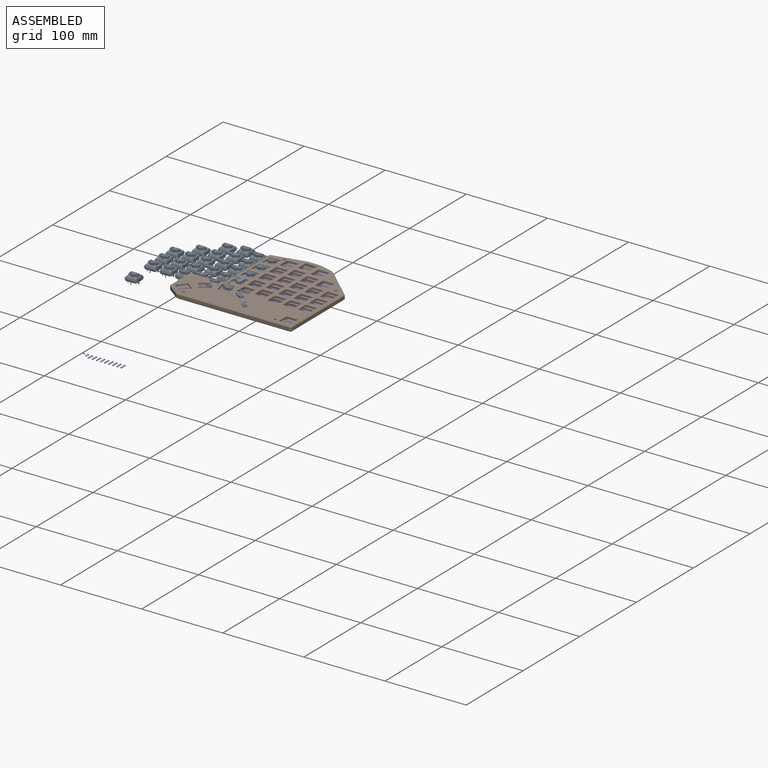
[diagram: assembled view]
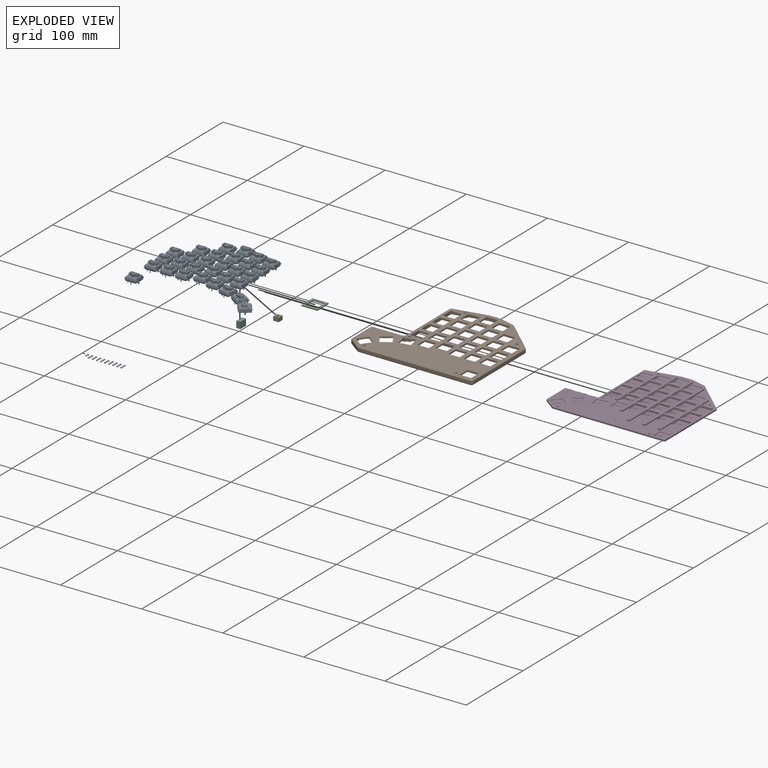
[diagram: exploded view]
GUIDED TOUR — FREECAD ASSEMBLY "grapto-v3"

This assembly has 6 components, labeled P0..P5 below (a component is one placed body or linked part; the same part can appear more than once), held together by 0 modeled joints plus 15 derived contact edges. A joint is a constraint between two components; its type names the relative motion it leaves free:
  CONTACT — a derived adjacency edge — the two components touch in the source model (clearance under 2% of the assembly's diagonal); it is measured from the geometry, not a modeled constraint.
Axis/direction vectors are unit vectors and 'through' points are millimeter coordinates, both in the assembly's world frame.

MATES
  1. CONTACT "contact_0_1": P0 <-> P1, contact direction (1.000, 0.000, 0.000) through (-4.25, -13.15, 1.79) mm (derived from contact, not a modeled constraint)
  2. CONTACT "contact_0_2": P0 <-> P2, contact direction (1.000, 0.000, 0.000) through (-0.58, 0.55, 0.03) mm (derived from contact, not a modeled constraint)
  3. CONTACT "contact_0_3": P0 <-> P3, contact direction (1.000, 0.000, 0.000) through (-7.07, 17.11, 0.85) mm (derived from contact, not a modeled constraint)
  4. CONTACT "contact_0_4": P0 <-> P4, contact direction (0.875, -0.485, -0.005) through (-0.88, -2.07, 4.93) mm (derived from contact, not a modeled constraint)
  5. CONTACT "contact_0_5": P0 <-> P5, contact direction (0.875, -0.485, -0.005) through (0.11, -2.00, 7.67) mm (derived from contact, not a modeled constraint)
  6. CONTACT "contact_1_2": P1 <-> P2, contact direction (0.000, 0.000, -1.000) through (12.95, 14.95, 2.55) mm (derived from contact, not a modeled constraint)
  7. CONTACT "contact_1_3": P1 <-> P3, contact direction (0.000, 0.000, -1.000) through (-33.68, -13.10, 1.80) mm (derived from contact, not a modeled constraint)
  8. CONTACT "contact_1_4": P1 <-> P4, contact direction (0.000, 0.000, 1.000) through (-3.96, -5.75, 4.40) mm (derived from contact, not a modeled constraint)
  9. CONTACT "contact_1_5": P1 <-> P5, contact direction (0.000, 0.000, 1.000) through (5.95, -5.95, 7.00) mm (derived from contact, not a modeled constraint)
  10. CONTACT "contact_2_3": P2 <-> P3, contact direction (0.000, 0.000, 1.000) through (0.55, 12.95, 1.22) mm (derived from contact, not a modeled constraint)
  11. CONTACT "contact_2_4": P2 <-> P4, contact direction (-0.485, -0.875, 0.004) through (-3.21, -3.21, 0.00) mm (derived from contact, not a modeled constraint)
  12. CONTACT "contact_2_5": P2 <-> P5, contact direction (-0.485, -0.875, 0.004) through (0.68, 0.00, 0.00) mm (derived from contact, not a modeled constraint)
  13. CONTACT "contact_3_4": P3 <-> P4, contact direction (0.000, 0.000, 1.000) through (-4.84, 4.31, 0.90) mm (derived from contact, not a modeled constraint)
  14. CONTACT "contact_3_5": P3 <-> P5, contact direction (-1.000, 0.000, 0.000) through (0.55, -5.95, 0.40) mm (derived from contact, not a modeled constraint)
  15. CONTACT "contact_4_5": P4 <-> P5, contact direction (1.000, 0.000, 0.000) through (0.24, 1.63, 0.50) mm (derived from contact, not a modeled constraint)

ASSEMBLY ORDER
  1. P0 — the base component [order verified]
  2. P4 [order verified]
  3. P5 [order verified]
  4. P2 [order verified]
  5. P1 [order verified]
  6. P3 [order verified]
(P1, P2, P3 verified with a relaxed clearance tolerance: the source model stores slight part interference there.)
Order-tag legend:
  [order verified] — this step's position reverses a verified removal order: the component was checked to insert without passing through the ones already placed.

Of the 6 components, 5 carry a construction recipe — the FreeCAD feature program (sketches with constraints, then the solid features that consume them) that regenerates the part from scratch, quoted from this document or from the linked companion document it references; the rest are supplied as boundary geometry only. The tour below walks the components in assembly order: each is shown spotlighted twice — in the assembled view, then in the exploded view, where a leader line traces a displaced component back to its assembled socket (components that stay in place when exploded have no leader line; saturated green if recipe-attached, orange if geometry-only; every other component desaturated gray) — followed by its recipe or geometry summary and the mates that hold it.
NOTE — this tour is split across 2 documents so each fits a 32k-token context. This is document 1: the component sections continue in the remaining 1 document, each repeating the header above.
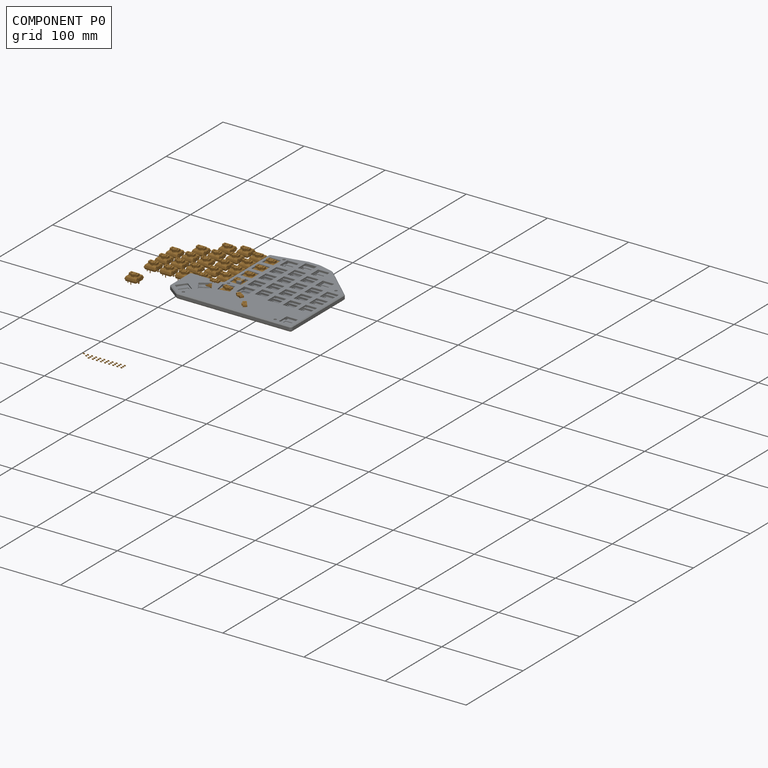
[diagram: component P0 — assembled]
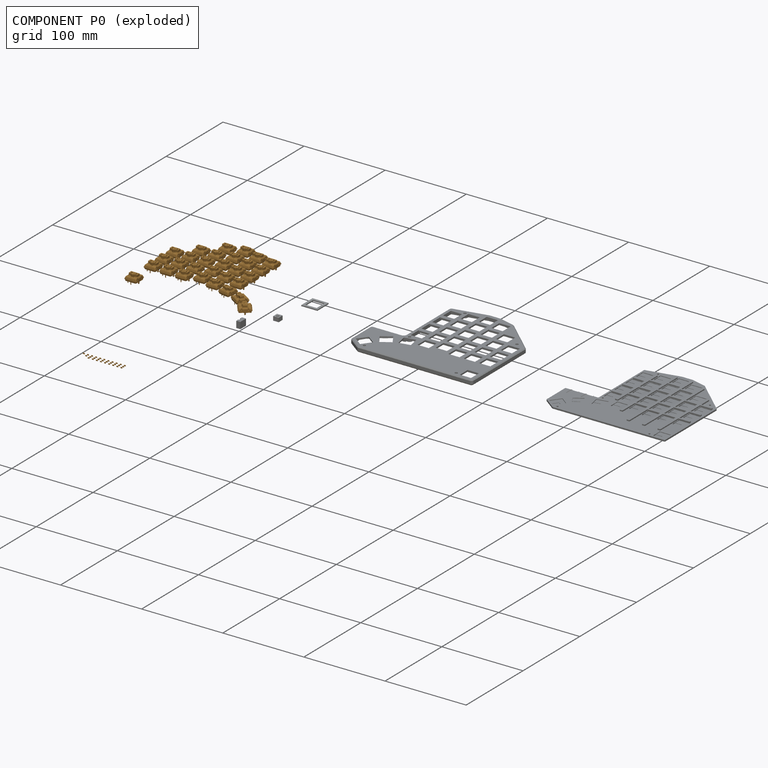
[diagram: component P0 — exploded]
COMPONENT P0 — geometry summary ("grapto-v3-pcb-left"; no construction recipe available for this part):
  bounding box: 302.6 x 150.2 x 11.0 mm
  tessellated surface: 883,920 triangles
  volume: 56619 mm^3 (11% of its bounding box)
  symmetry: mirror-symmetric across its z mid-plane
Held by: resting contact with P1 (derived edge); resting contact with P2 (derived edge); resting contact with P3 (derived edge); resting contact with P4 (derived edge); resting contact with P5 (derived edge).
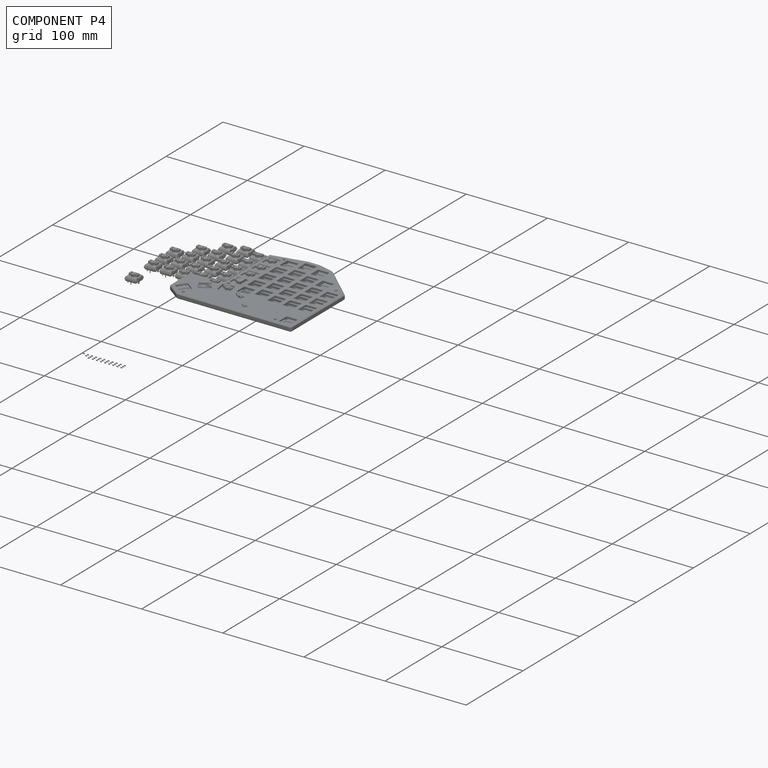
[diagram: component P4 — assembled]
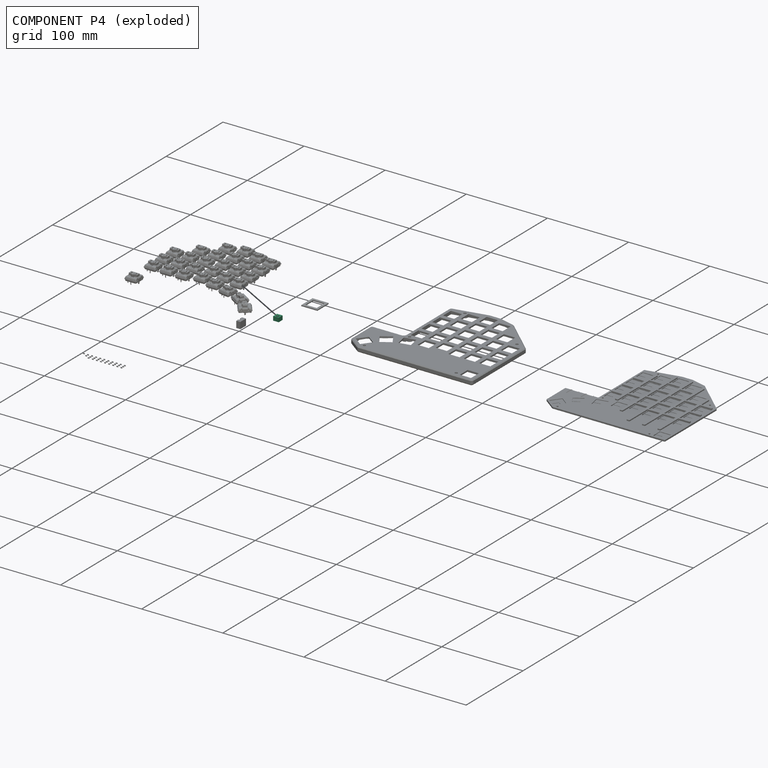
[diagram: component P4 — exploded]
COMPONENT P4 — recipe-attached ("InsetTest", modeled in this document).
Held by: resting contact with P0 (derived edge); resting contact with P1 (derived edge); resting contact with P2 (derived edge); resting contact with P3 (derived edge); resting contact with P5 (derived edge).
Construction recipe (the document's own serialized feature program — sketch geometry with constraints, then the solid features built on it; lengths are millimeters unless a unit is written):

FEATURE [Sketcher::SketchObject] Sketch035
  FullyConstrained = true
  MapMode = 5
  Support = -> [XY_Plane013]
  sketch-geometry (4):
    g0: LineSegment StartX=-3.425 StartY=3.425 StartZ=0 EndX=3.425 EndY=3.425 EndZ=0
    g1: LineSegment StartX=3.425 StartY=3.425 StartZ=0 EndX=3.425 EndY=-3.425 EndZ=0
    g2: LineSegment StartX=3.425 StartY=-3.425 StartZ=0 EndX=-3.425 EndY=-3.425 EndZ=0
    g3: LineSegment StartX=-3.425 StartY=-3.425 StartZ=0 EndX=-3.425 EndY=3.425 EndZ=0
  constraints (11):
    c: Coincident(g0,g1)
    c: Coincident(g1,g2)
    c: Coincident(g2,g3)
    c: Coincident(g3,g0)
    c: Horizontal(g0)
    c: Horizontal(g2)
    c: Vertical(g1)
    c: Vertical(g3)
    c: Symmetric(g2,g0,g-1)
    c: Equal(g0,g1)
    c: DistanceY(g1,g1) = 6.85
FEATURE [PartDesign::Pad] Pad003
  Direction = (1,1,1)
  Length = 5
  Length2 = 100
  Profile = -> Sketch035
  Type = 0
FEATURE [Sketcher::SketchObject] Sketch036
  FullyConstrained = true
  MapMode = 5
  Placement = pos=(0,0,5) rot=(0,0,1;0rad)
  Support = -> [Pad003]
  sketch-geometry (1):
    g0: Circle CenterX=0 CenterY=0 CenterZ=0 NormalX=0 NormalY=0 NormalZ=1 AngleXU=0 Radius=1.65
  constraints (2):
    c: Coincident(g0,g-1)
    c: Diameter(g0) = 3.3
FEATURE [PartDesign::Hole] Hole002
  BaseFeature = -> Pad003
  Depth = 4
  DepthType = 0
  Diameter = 3.3
  DrillForDepth = false
  DrillPoint = 0
  DrillPointAngle = 118
  HoleCutCountersinkAngle = 90
  HoleCutCustomValues = false
  HoleCutDepth = 0
  HoleCutDiameter = 4
  HoleCutType = 2
  ModelActualThread = false
  Profile = -> Sketch036
  Tapered = false
  TaperedAngle = 90
  ThreadAngle = 0
  ThreadClass = 0
  ThreadCutOffInner = 0
  ThreadCutOffOuter = 0
  ThreadDirection = 0
  ThreadFit = 0
  ThreadPitch = 0
  ThreadSize = 0
  ThreadType = 0
  Threaded = false
FEATURE [PartDesign::Body] Body005  label="InsetTest"
  Group = -> [Sketch035,Pad003,Sketch036,Hole002]
  Origin = -> Origin013
  Tip = -> Hole002
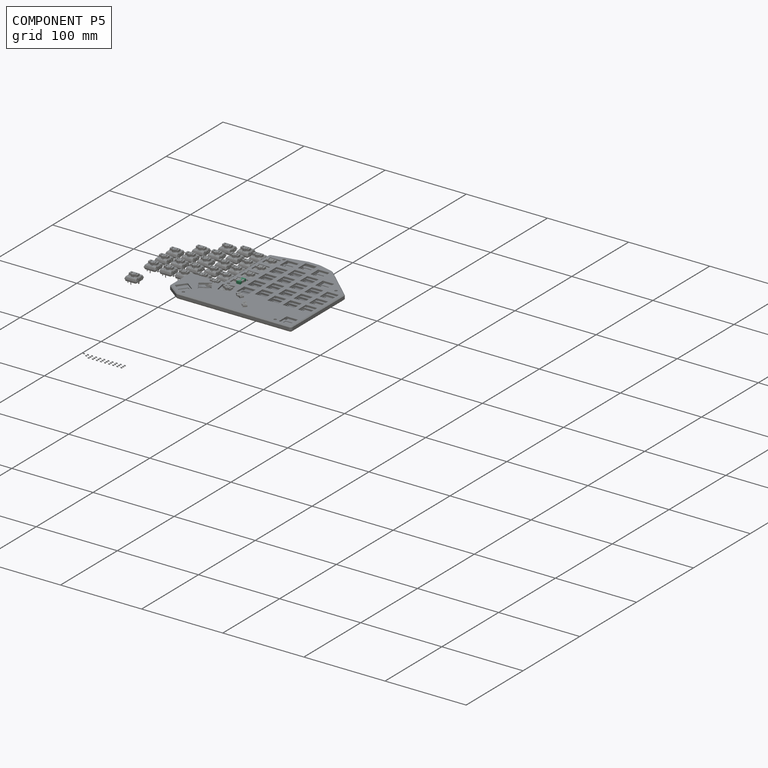
[diagram: component P5 — assembled]
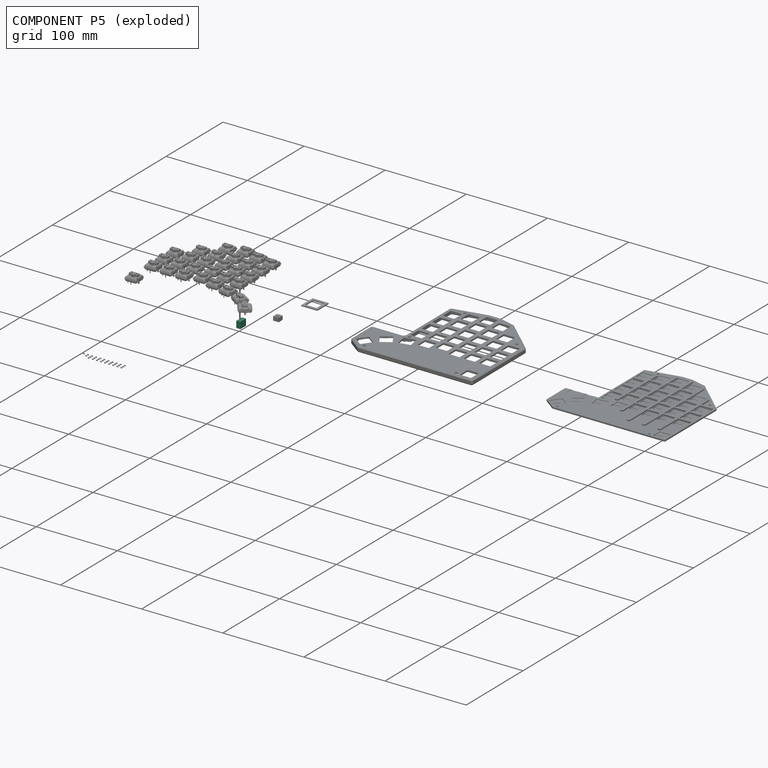
[diagram: component P5 — exploded]
COMPONENT P5 — recipe-attached ("InsetHolder", modeled in this document).
Held by: resting contact with P0 (derived edge); resting contact with P1 (derived edge); resting contact with P2 (derived edge); resting contact with P3 (derived edge); resting contact with P4 (derived edge).
Construction recipe (the document's own serialized feature program — sketch geometry with constraints, then the solid features built on it; lengths are millimeters unless a unit is written):

FEATURE [Sketcher::SketchObject] Sketch037
  FullyConstrained = true
  MapMode = 5
  Support = -> [XY_Plane015]
  sketch-geometry (6):
    g0: ArcOfCircle CenterX=-0.4 CenterY=0 CenterZ=0 NormalX=0 NormalY=0 NormalZ=1 AngleXU=0 Radius=1.75 StartAngle=4.943 EndAngle=7.62337
    g1: LineSegment StartX=-4e-16 StartY=1.70367 StartZ=0 EndX=0 EndY=5 EndZ=0
    g2: LineSegment StartX=0 StartY=5 StartZ=0 EndX=5 EndY=5 EndZ=0
    g3: LineSegment StartX=5 StartY=5 StartZ=0 EndX=5 EndY=-5 EndZ=0
    g4: LineSegment StartX=5 StartY=-5 StartZ=0 EndX=0 EndY=-5 EndZ=0
    g5: LineSegment StartX=0 StartY=-5 StartZ=0 EndX=3e-16 EndY=-1.70367 EndZ=0
  constraints (18):
    c: PointOnObject(g0,g-1)
    c: PointOnObject(g0,g-2)
    c: PointOnObject(g0,g-2)
    c: Coincident(g0,g1)
    c: PointOnObject(g1,g-2)
    c: Coincident(g1,g2)
    c: Horizontal(g2)
    c: Coincident(g2,g3)
    c: Vertical(g3)
    c: Coincident(g3,g4)
    c: Horizontal(g4)
    c: Coincident(g4,g5)
    c: Coincident(g5,g0)
    c: Symmetric(g1,g4,g-1)
    c: Diameter(g0) = 3.5
    c: Distance(g-1,g0) = 0.4
    c: Distance(g3) = 10
    c: Distance(g2) = 5
FEATURE [PartDesign::Pad] Pad004
  Direction = (1,1,1)
  Length = 8
  Length2 = 100
  Profile = -> Sketch037
  Type = 0
FEATURE [PartDesign::Body] Body007  label="InsetHolder"
  Group = -> [Sketch037,Pad004]
  Origin = -> Origin015
  Tip = -> Pad004
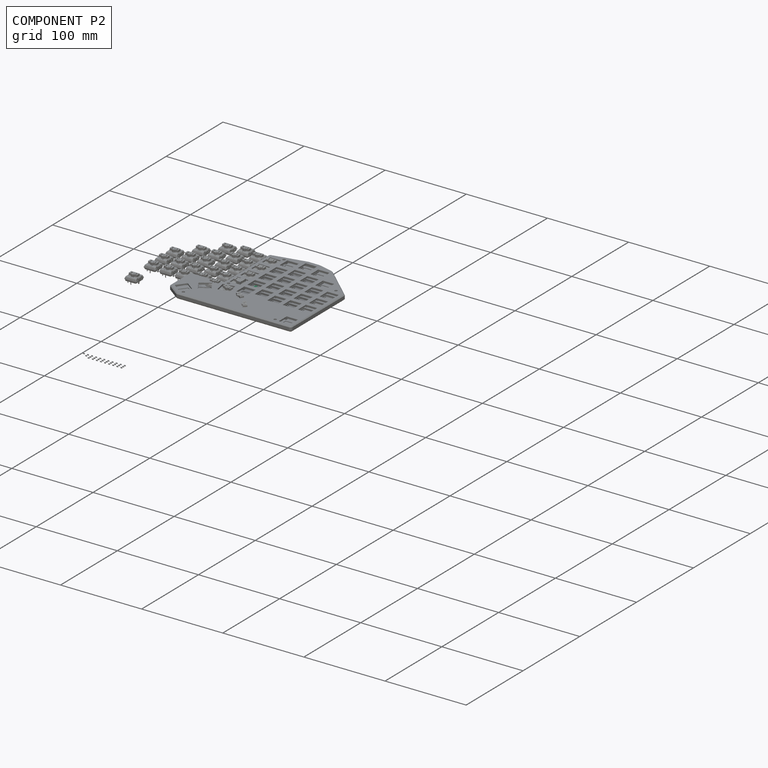
[diagram: component P2 — assembled]
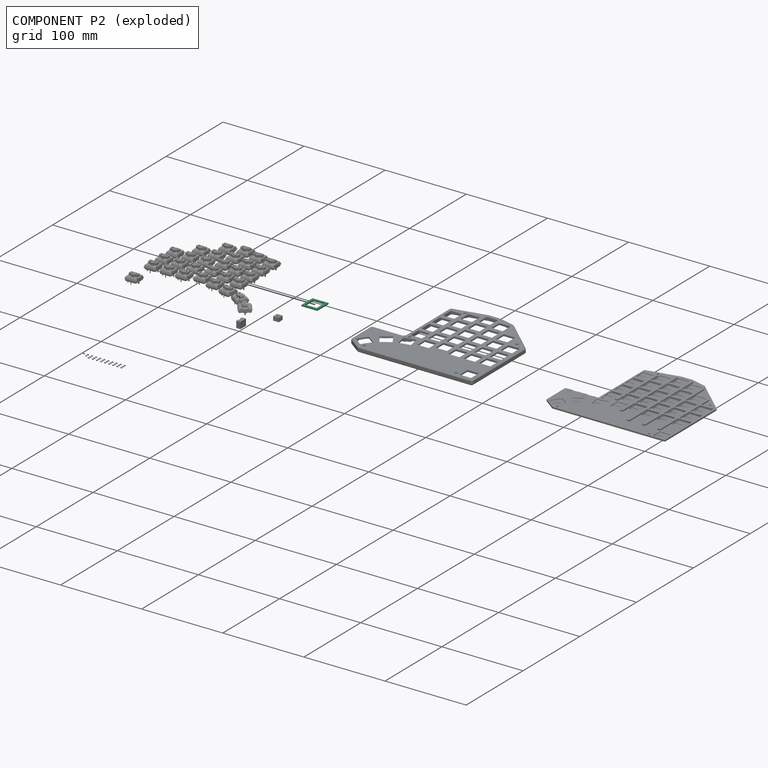
[diagram: component P2 — exploded]
COMPONENT P2 — recipe-attached ("switch test", modeled in this document).
Held by: resting contact with P0 (derived edge); resting contact with P1 (derived edge); resting contact with P3 (derived edge); resting contact with P4 (derived edge); resting contact with P5 (derived edge).
Construction recipe (the document's own serialized feature program — sketch geometry with constraints, then the solid features built on it; lengths are millimeters unless a unit is written):

FEATURE [Sketcher::SketchObject] Sketch001
  FullyConstrained = true
  MapMode = 5
  Support = -> [XY_Plane001]
  expr: Constraints[18] = <<ss>>.ss_sw_side
  sketch-geometry (8):
    g0: LineSegment StartX=-3 StartY=16.8 StartZ=0 EndX=16.8 EndY=16.8 EndZ=0
    g1: LineSegment StartX=16.8 StartY=16.8 StartZ=0 EndX=16.8 EndY=-3 EndZ=0
    g2: LineSegment StartX=16.8 StartY=-3 StartZ=0 EndX=-3 EndY=-3 EndZ=0
    g3: LineSegment StartX=-3 StartY=-3 StartZ=0 EndX=-3 EndY=16.8 EndZ=0
    g4: LineSegment StartX=0 StartY=13.8 StartZ=0 EndX=13.8 EndY=13.8 EndZ=0
    g5: LineSegment StartX=13.8 StartY=13.8 StartZ=0 EndX=13.8 EndY=0 EndZ=0
    g6: LineSegment StartX=13.8 StartY=0 StartZ=0 EndX=0 EndY=0 EndZ=0
    g7: LineSegment StartX=0 StartY=0 StartZ=0 EndX=0 EndY=13.8 EndZ=0
  constraints (23):
    c: Coincident(g0,g1)
    c: Coincident(g1,g2)
    c: Coincident(g2,g3)
    c: Coincident(g3,g0)
    c: Horizontal(g0)
    c: Horizontal(g2)
    c: Vertical(g1)
    c: Vertical(g3)
    c: Coincident(g4,g5)
    c: Coincident(g5,g6)
    c: Coincident(g6,g7)
    c: Coincident(g7,g4)
    c: Horizontal(g4)
    c: Horizontal(g6)
    c: Vertical(g5)
    c: Vertical(g7)
    c: Equal(g4,g5)
    c: Equal(g0,g1)
    c: Distance(g4) = 13.8
    c: Coincident(g-1,g6)
    c: DistanceX(g2,g6) = 3
    c: DistanceY(g2,g6) = 3
    c: DistanceY(g4,g0) = 3
FEATURE [PartDesign::Pad] Pad001
  Direction = (1,1,1)
  Length = 1.3
  Length2 = 100
  Profile = -> Sketch001
  Type = 0
FEATURE [PartDesign::Body] Body001  label="switch test"
  Group = -> [Sketch001,Pad001]
  Origin = -> Origin001
  Tip = -> Pad001
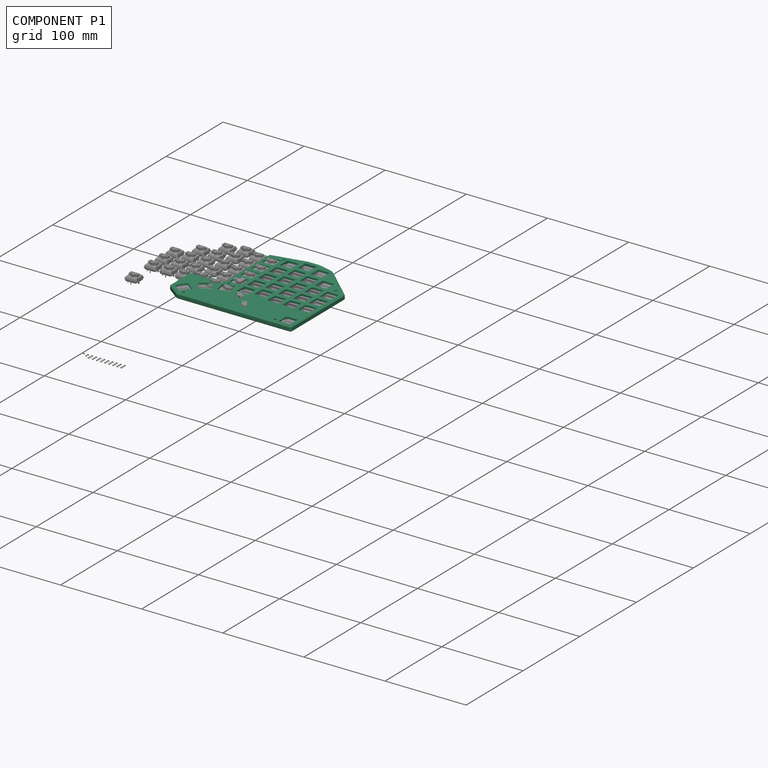
[diagram: component P1 — assembled]
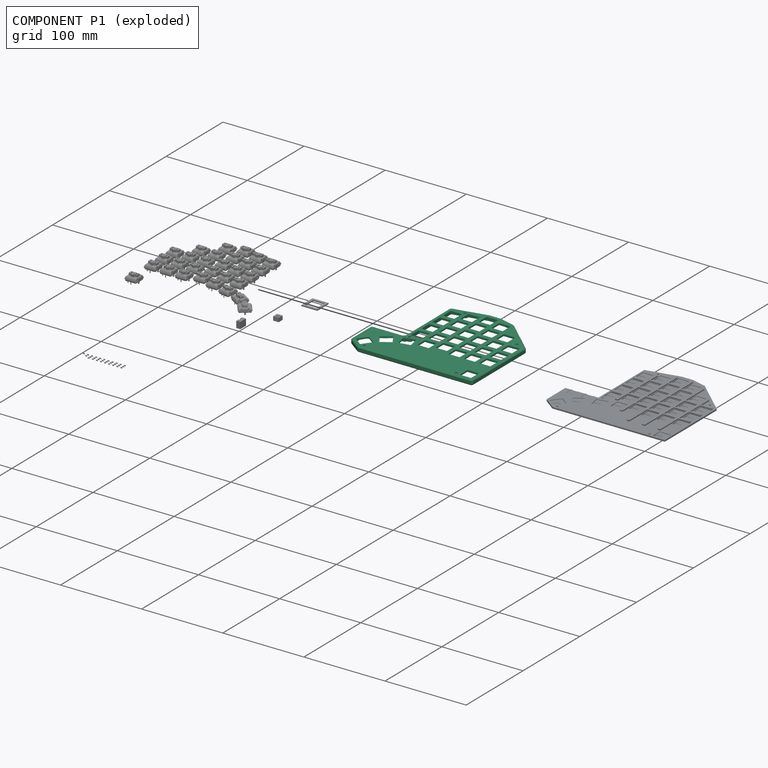
[diagram: component P1 — exploded]
COMPONENT P1 — recipe-attached ("BodyRight", modeled in this document).
Held by: resting contact with P0 (derived edge); resting contact with P2 (derived edge); resting contact with P3 (derived edge); resting contact with P4 (derived edge); resting contact with P5 (derived edge).
Construction recipe (the document's own serialized feature program — sketch geometry with constraints, then the solid features built on it; lengths are millimeters unless a unit is written):

FEATURE [Sketcher::SketchObject] Sketch  label="SketchTop"
  FullyConstrained = true
  MapMode = 5
  Support = -> [XY_Plane]
  expr: Constraints[247] = <<ss>>.ss_sw_side
  expr: Constraints[479] = <<ss>>.ss_sw_side
  expr: Constraints[480] = <<ss>>.ss_sw_side
  sketch-geometry (190):
    g0: LineSegment StartX=-6.9 StartY=-6.9 StartZ=0 EndX=6.9 EndY=-6.9 EndZ=0
    g1: LineSegment StartX=-6.9 StartY=-6.9 StartZ=0 EndX=-6.9 EndY=6.9 EndZ=0
    g2: LineSegment StartX=-6.9 StartY=6.9 StartZ=0 EndX=6.9 EndY=6.9 EndZ=0
    g3: LineSegment StartX=6.9 StartY=-6.9 StartZ=0 EndX=6.9 EndY=6.9 EndZ=0
    g4: LineSegment StartX=-6.9 StartY=12.1 StartZ=0 EndX=6.9 EndY=12.1 EndZ=0
    g5: LineSegment StartX=-6.9 StartY=12.1 StartZ=0 EndX=-6.9 EndY=25.9 EndZ=0
    g6: LineSegment StartX=-6.9 StartY=25.9 StartZ=0 EndX=6.9 EndY=25.9 EndZ=0
    g7: LineSegment StartX=6.9 StartY=12.1 StartZ=0 EndX=6.9 EndY=25.9 EndZ=0
    g8: LineSegment StartX=-6.9 StartY=31.1 StartZ=0 EndX=6.9 EndY=31.1 EndZ=0
    g9: LineSegment StartX=-6.9 StartY=31.1 StartZ=0 EndX=-6.9 EndY=44.9 EndZ=0
    g10: LineSegment StartX=-6.9 StartY=44.9 StartZ=0 EndX=6.9 EndY=44.9 EndZ=0
    g11: LineSegment StartX=6.9 StartY=31.1 StartZ=0 EndX=6.9 EndY=44.9 EndZ=0
    g12: LineSegment StartX=-6.9 StartY=50.1 StartZ=0 EndX=6.9 EndY=50.1 EndZ=0
    g13: LineSegment StartX=-6.9 StartY=50.1 StartZ=0 EndX=-6.9 EndY=63.9 EndZ=0
    g14: LineSegment StartX=-6.9 StartY=63.9 StartZ=0 EndX=6.9 EndY=63.9 EndZ=0
    g15: LineSegment StartX=6.9 StartY=50.1 StartZ=0 EndX=6.9 EndY=63.9 EndZ=0
    g16: LineSegment StartX=12.1 StartY=-21.9 StartZ=0 EndX=25.9 EndY=-21.9 EndZ=0
    g17: LineSegment StartX=12.1 StartY=-21.9 StartZ=0 EndX=12.1 EndY=-8.1 EndZ=0
    g18: LineSegment StartX=12.1 StartY=-8.1 StartZ=0 EndX=25.9 EndY=-8.1 EndZ=0
    g19: LineSegment StartX=25.9 StartY=-21.9 StartZ=0 EndX=25.9 EndY=-8.1 EndZ=0
    g20: LineSegment StartX=12.1 StartY=-2.9 StartZ=0 EndX=25.9 EndY=-2.9 EndZ=0
    g21: LineSegment StartX=12.1 StartY=-2.9 StartZ=0 EndX=12.1 EndY=10.9 EndZ=0
    g22: LineSegment StartX=12.1 StartY=10.9 StartZ=0 EndX=25.9 EndY=10.9 EndZ=0
    g23: LineSegment StartX=25.9 StartY=-2.9 StartZ=0 EndX=25.9 EndY=10.9 EndZ=0
    g24: LineSegment StartX=12.1 StartY=16.1 StartZ=0 EndX=25.9 EndY=16.1 EndZ=0
    g25: LineSegment StartX=12.1 StartY=16.1 StartZ=0 EndX=12.1 EndY=29.9 EndZ=0
    g26: LineSegment StartX=12.1 StartY=29.9 StartZ=0 EndX=25.9 EndY=29.9 EndZ=0
    g27: LineSegment StartX=25.9 StartY=16.1 StartZ=0 EndX=25.9 EndY=29.9 EndZ=0
    g28: LineSegment StartX=12.1 StartY=35.1 StartZ=0 EndX=25.9 EndY=35.1 EndZ=0
    g29: LineSegment StartX=12.1 StartY=35.1 StartZ=0 EndX=12.1 EndY=48.9 EndZ=0
    g30: LineSegment StartX=12.1 StartY=48.9 StartZ=0 EndX=25.9 EndY=48.9 EndZ=0
    g31: LineSegment StartX=25.9 StartY=35.1 StartZ=0 EndX=25.9 EndY=48.9 EndZ=0
    g32: LineSegment StartX=12.1 StartY=54.1 StartZ=0 EndX=25.9 EndY=54.1 EndZ=0
    g33: LineSegment StartX=12.1 StartY=54.1 StartZ=0 EndX=12.1 EndY=67.9 EndZ=0
    g34: LineSegment StartX=12.1 StartY=67.9 StartZ=0 EndX=25.9 EndY=67.9 EndZ=0
    g35: LineSegment StartX=25.9 StartY=54.1 StartZ=0 EndX=25.9 EndY=67.9 EndZ=0
    g36: LineSegment StartX=31.1 StartY=-16.9 StartZ=0 EndX=44.9 EndY=-16.9 EndZ=0
    g37: LineSegment StartX=31.1 StartY=-16.9 StartZ=0 EndX=31.1 EndY=-3.1 EndZ=0
    g38: LineSegment StartX=31.1 StartY=-3.1 StartZ=0 EndX=44.9 EndY=-3.1 EndZ=0
    g39: LineSegment StartX=44.9 StartY=-16.9 StartZ=0 EndX=44.9 EndY=-3.1 EndZ=0
    g40: LineSegment StartX=31.1 StartY=2.1 StartZ=0 EndX=44.9 EndY=2.1 EndZ=0
    g41: LineSegment StartX=31.1 StartY=2.1 StartZ=0 EndX=31.1 EndY=15.9 EndZ=0
    g42: LineSegment StartX=31.1 StartY=15.9 StartZ=0 EndX=44.9 EndY=15.9 EndZ=0
    g43: LineSegment StartX=44.9 StartY=2.1 StartZ=0 EndX=44.9 EndY=15.9 EndZ=0
    g44: LineSegment StartX=31.1 StartY=21.1 StartZ=0 EndX=44.9 EndY=21.1 EndZ=0
    g45: LineSegment StartX=31.1 StartY=21.1 StartZ=0 EndX=31.1 EndY=34.9 EndZ=0
    g46: LineSegment StartX=31.1 StartY=34.9 StartZ=0 EndX=44.9 EndY=34.9 EndZ=0
    g47: LineSegment StartX=44.9 StartY=21.1 StartZ=0 EndX=44.9 EndY=34.9 EndZ=0
    g48: LineSegment StartX=31.1 StartY=40.1 StartZ=0 EndX=44.9 EndY=40.1 EndZ=0
    g49: LineSegment StartX=31.1 StartY=40.1 StartZ=0 EndX=31.1 EndY=53.9 EndZ=0
    g50: LineSegment StartX=31.1 StartY=53.9 StartZ=0 EndX=44.9 EndY=53.9 EndZ=0
    g51: LineSegment StartX=44.9 StartY=40.1 StartZ=0 EndX=44.9 EndY=53.9 EndZ=0
    g52: LineSegment StartX=31.1 StartY=59.1 StartZ=0 EndX=44.9 EndY=59.1 EndZ=0
    g53: LineSegment StartX=31.1 StartY=59.1 StartZ=0 EndX=31.1 EndY=72.9 EndZ=0
    g54: LineSegment StartX=31.1 StartY=72.9 StartZ=0 EndX=44.9 EndY=72.9 EndZ=0
    g55: LineSegment StartX=44.9 StartY=59.1 StartZ=0 EndX=44.9 EndY=72.9 EndZ=0
    g56: LineSegment StartX=50.1 StartY=-21.9 StartZ=0 EndX=63.9 EndY=-21.9 EndZ=0
    g57: LineSegment StartX=50.1 StartY=-21.9 StartZ=0 EndX=50.1 EndY=-8.1 EndZ=0
    g58: LineSegment StartX=50.1 StartY=-8.1 StartZ=0 EndX=63.9 EndY=-8.1 EndZ=0
    g59: LineSegment StartX=63.9 StartY=-21.9 StartZ=0 EndX=63.9 EndY=-8.1 EndZ=0
    g60: LineSegment StartX=50.1 StartY=-2.9 StartZ=0 EndX=63.9 EndY=-2.9 EndZ=0
    g61: LineSegment StartX=50.1 StartY=-2.9 StartZ=0 EndX=50.1 EndY=10.9 EndZ=0
    g62: LineSegment StartX=50.1 StartY=10.9 StartZ=0 EndX=63.9 EndY=10.9 EndZ=0
    g63: LineSegment StartX=63.9 StartY=-2.9 StartZ=0 EndX=63.9 EndY=10.9 EndZ=0
    g64: LineSegment StartX=50.1 StartY=16.1 StartZ=0 EndX=63.9 EndY=16.1 EndZ=0
    g65: LineSegment StartX=50.1 StartY=16.1 StartZ=0 EndX=50.1 EndY=29.9 EndZ=0
    g66: LineSegment StartX=50.1 StartY=29.9 StartZ=0 EndX=63.9 EndY=29.9 EndZ=0
    g67: LineSegment StartX=63.9 StartY=16.1 StartZ=0 EndX=63.9 EndY=29.9 EndZ=0
    g68: LineSegment StartX=50.1 StartY=35.1 StartZ=0 EndX=63.9 EndY=35.1 EndZ=0
    g69: LineSegment StartX=50.1 StartY=35.1 StartZ=0 EndX=50.1 EndY=48.9 EndZ=0
    g70: LineSegment StartX=50.1 StartY=48.9 StartZ=0 EndX=63.9 EndY=48.9 EndZ=0
    g71: LineSegment StartX=63.9 StartY=35.1 StartZ=0 EndX=63.9 EndY=48.9 EndZ=0
    g72: LineSegment StartX=50.1 StartY=54.1 StartZ=0 EndX=63.9 EndY=54.1 EndZ=0
    g73: LineSegment StartX=50.1 StartY=54.1 StartZ=0 EndX=50.1 EndY=67.9 EndZ=0
    g74: LineSegment StartX=50.1 StartY=67.9 StartZ=0 EndX=63.9 EndY=67.9 EndZ=0
    g75: LineSegment StartX=63.9 StartY=54.1 StartZ=0 EndX=63.9 EndY=67.9 EndZ=0
    g76: LineSegment StartX=69.1 StartY=-21.9 StartZ=0 EndX=82.9 EndY=-21.9 EndZ=0
    g77: LineSegment StartX=69.1 StartY=-21.9 StartZ=0 EndX=69.1 EndY=-8.1 EndZ=0
    g78: LineSegment StartX=69.1 StartY=-8.1 StartZ=0 EndX=82.9 EndY=-8.1 EndZ=0
    g79: LineSegment StartX=82.9 StartY=-21.9 StartZ=0 EndX=82.9 EndY=-8.1 EndZ=0
    g80: LineSegment StartX=69.1 StartY=-2.9 StartZ=0 EndX=82.9 EndY=-2.9 EndZ=0
    g81: LineSegment StartX=69.1 StartY=-2.9 StartZ=0 EndX=69.1 EndY=10.9 EndZ=0
    g82: LineSegment StartX=69.1 StartY=10.9 StartZ=0 EndX=82.9 EndY=10.9 EndZ=0
    g83: LineSegment StartX=82.9 StartY=-2.9 StartZ=0 EndX=82.9 EndY=10.9 EndZ=0
    g84: LineSegment StartX=69.1 StartY=16.1 StartZ=0 EndX=82.9 EndY=16.1 EndZ=0
    g85: LineSegment StartX=69.1 StartY=16.1 StartZ=0 EndX=69.1 EndY=29.9 EndZ=0
    g86: LineSegment StartX=69.1 StartY=29.9 StartZ=0 EndX=82.9 EndY=29.9 EndZ=0
    g87: LineSegment StartX=82.9 StartY=16.1 StartZ=0 EndX=82.9 EndY=29.9 EndZ=0
    g88: LineSegment StartX=69.1 StartY=35.1 StartZ=0 EndX=82.9 EndY=35.1 EndZ=0
    g89: LineSegment StartX=69.1 StartY=35.1 StartZ=0 EndX=69.1 EndY=48.9 EndZ=0
    g90: LineSegment StartX=69.1 StartY=48.9 StartZ=0 EndX=82.9 EndY=48.9 EndZ=0
    g91: LineSegment StartX=82.9 StartY=35.1 StartZ=0 EndX=82.9 EndY=48.9 EndZ=0
    g92: LineSegment StartX=88.1 StartY=-2.9 StartZ=0 EndX=101.9 EndY=-2.9 EndZ=0
    g93: LineSegment StartX=88.1 StartY=-2.9 StartZ=0 EndX=88.1 EndY=10.9 EndZ=0
    g94: LineSegment StartX=88.1 StartY=10.9 StartZ=0 EndX=101.9 EndY=10.9 EndZ=0
    g95: LineSegment StartX=101.9 StartY=-2.9 StartZ=0 EndX=101.9 EndY=10.9 EndZ=0
    g96: LineSegment StartX=88.1 StartY=16.1 StartZ=0 EndX=101.9 EndY=16.1 EndZ=0
    g97: LineSegment StartX=88.1 StartY=16.1 StartZ=0 EndX=88.1 EndY=29.9 EndZ=0
    g98: LineSegment StartX=88.1 StartY=29.9 StartZ=0 EndX=101.9 EndY=29.9 EndZ=0
    g99: LineSegment StartX=101.9 StartY=16.1 StartZ=0 EndX=101.9 EndY=29.9 EndZ=0
    g100: Circle CenterX=11.1778 CenterY=-81.0686 CenterZ=0 NormalX=0 NormalY=0 NormalZ=1 AngleXU=0 Radius=55
    g101: LineSegment StartX=-9.21354 StartY=-15.4513 StartZ=0 EndX=4.30942 EndY=-12.7 EndZ=0
    g102: LineSegment StartX=4.30942 StartY=-12.7 StartZ=0 EndX=7.06069 EndY=-26.223 EndZ=0
    g103: LineSegment StartX=7.06069 StartY=-26.223 StartZ=0 EndX=-6.46227 EndY=-28.9742 EndZ=0
    g104: LineSegment StartX=-6.46227 StartY=-28.9742 StartZ=0 EndX=-9.21354 EndY=-15.4513 EndZ=0
    g105: LineSegment StartX=-31.1099 StartY=-26.9097 StartZ=0 EndX=-19.435 EndY=-19.5519 EndZ=0
    g106: LineSegment StartX=-19.435 StartY=-19.5519 StartZ=0 EndX=-12.0773 EndY=-31.2269 EndZ=0
    g107: LineSegment StartX=-12.0773 StartY=-31.2269 StartZ=0 EndX=-23.7522 EndY=-38.5846 EndZ=0
    g108: LineSegment StartX=-23.7522 StartY=-38.5846 StartZ=0 EndX=-31.1099 EndY=-26.9097 EndZ=0
    g109: LineSegment StartX=-47.5361 StartY=-45.3738 StartZ=0 EndX=-39.2194 EndY=-34.3614 EndZ=0
    g110: LineSegment StartX=-39.2194 StartY=-34.3614 StartZ=0 EndX=-28.207 EndY=-42.6781 EndZ=0
    g111: LineSegment StartX=-28.207 StartY=-42.6781 StartZ=0 EndX=-36.5237 EndY=-53.6905 EndZ=0
    g112: LineSegment StartX=-36.5237 StartY=-53.6905 StartZ=0 EndX=-47.5361 EndY=-45.3738 EndZ=0
    g113: LineSegment StartX=88.1 StartY=-8.1 StartZ=0 EndX=101.9 EndY=-8.1 EndZ=0
    g114: LineSegment StartX=101.9 StartY=-8.1 StartZ=0 EndX=101.9 EndY=-21.9 EndZ=0
    g115: LineSegment StartX=101.9 StartY=-21.9 StartZ=0 EndX=88.1 EndY=-21.9 EndZ=0
    g116: LineSegment StartX=88.1 StartY=-21.9 StartZ=0 EndX=88.1 EndY=-8.1 EndZ=0
    g117: LineSegment StartX=88.1 StartY=-42.1 StartZ=0 EndX=101.85 EndY=-42.1 EndZ=0
    g118: LineSegment StartX=101.85 StartY=-42.1 StartZ=0 EndX=101.85 EndY=-55.85 EndZ=0
    g119: LineSegment StartX=101.85 StartY=-55.85 StartZ=0 EndX=88.1 EndY=-55.85 EndZ=0
    g120: LineSegment StartX=88.1 StartY=-55.85 StartZ=0 EndX=88.1 EndY=-42.1 EndZ=0
    g121: LineSegment StartX=88.1 StartY=-21.9 StartZ=0 EndX=88.1 EndY=-42.1 EndZ=0
    g122: LineSegment StartX=106.4 StartY=-60.35 StartZ=0 EndX=-35.1726 EndY=-60.35 EndZ=0
    g123: LineSegment StartX=-35.1726 StartY=-60.35 StartZ=0 EndX=-52.0361 EndY=-47.6145 EndZ=0
    g124: LineSegment StartX=-52.0361 StartY=-47.6145 StartZ=0 EndX=-52.0361 EndY=-11.5519 EndZ=0
    g125: LineSegment StartX=-52.0361 StartY=-11.5519 StartZ=0 EndX=-11.4 EndY=-11.5519 EndZ=0
    g126: LineSegment StartX=-11.4 StartY=69.4 StartZ=0 EndX=31.1 EndY=78.4 EndZ=0
    g127: LineSegment StartX=31.1 StartY=78.4 StartZ=0 EndX=44.9 EndY=78.4 EndZ=0
    g128: LineSegment StartX=44.9 StartY=78.4 StartZ=0 EndX=63.9 EndY=73.4 EndZ=0
    g129: LineSegment StartX=63.9 StartY=73.4 StartZ=0 EndX=106.4 EndY=34.4 EndZ=0
    g130: LineSegment StartX=106.4 StartY=34.4 StartZ=0 EndX=106.4 EndY=-60.35 EndZ=0
    g131: LineSegment StartX=31.1 StartY=72.9 StartZ=0 EndX=31.1 EndY=78.4 EndZ=0
    g132: LineSegment StartX=44.9 StartY=72.9 StartZ=0 EndX=44.9 EndY=78.4 EndZ=0
    g133: LineSegment StartX=63.9 StartY=67.9 StartZ=0 EndX=63.9 EndY=73.4 EndZ=0
    g134: LineSegment StartX=-27.9 StartY=-19.5519 StartZ=0 EndX=-12.9 EndY=-19.5519 EndZ=0
    g135: LineSegment StartX=-11.4 StartY=-11.5519 StartZ=0 EndX=-11.4 EndY=69.4 EndZ=0
    g136: LineSegment StartX=-27.9 StartY=-19.5519 StartZ=0 EndX=-27.9 EndY=-11.5519 EndZ=0
    g137: LineSegment StartX=-12.9 StartY=-19.5519 StartZ=0 EndX=-12.9 EndY=-11.5519 EndZ=0
    g138: LineSegment StartX=-30.9 StartY=-11.5519 StartZ=0 EndX=-30.9 EndY=-19.5519 EndZ=0
    g139: LineSegment StartX=-30.9 StartY=-19.5519 StartZ=0 EndX=-45.9 EndY=-19.5519 EndZ=0
    g140: LineSegment StartX=-45.9 StartY=-19.5519 StartZ=0 EndX=-45.9 EndY=-11.5519 EndZ=0
    g141: LineSegment StartX=-6.9 StartY=6.9 StartZ=0 EndX=-6.9 EndY=12.1 EndZ=0
    g142: LineSegment StartX=-6.9 StartY=25.9 StartZ=0 EndX=-6.9 EndY=31.1 EndZ=0
    g143: LineSegment StartX=-6.9 StartY=50.1 StartZ=0 EndX=-6.9 EndY=44.9 EndZ=0
    g144: LineSegment StartX=12.1 StartY=54.1 StartZ=0 EndX=12.1 EndY=48.9 EndZ=0
    g145: LineSegment StartX=12.1 StartY=29.9 StartZ=0 EndX=12.1 EndY=35.1 EndZ=0
    g146: LineSegment StartX=12.1 StartY=10.9 StartZ=0 EndX=12.1 EndY=16.1 EndZ=0
    g147: LineSegment StartX=12.1 StartY=-8.1 StartZ=0 EndX=12.1 EndY=-2.9 EndZ=0
    g148: LineSegment StartX=31.1 StartY=-3.1 StartZ=0 EndX=31.1 EndY=2.1 EndZ=0
    g149: LineSegment StartX=31.1 StartY=15.9 StartZ=0 EndX=31.1 EndY=21.1 EndZ=0
    g150: LineSegment StartX=31.1 StartY=34.9 StartZ=0 EndX=31.1 EndY=40.1 EndZ=0
    g151: LineSegment StartX=31.1 StartY=53.9 StartZ=0 EndX=31.1 EndY=59.1 EndZ=0
    g152: LineSegment StartX=50.1 StartY=-8.1 StartZ=0 EndX=50.1 EndY=-2.9 EndZ=0
    g153: LineSegment StartX=50.1 StartY=10.9 StartZ=0 EndX=50.1 EndY=16.1 EndZ=0
    g154: LineSegment StartX=50.1 StartY=29.9 StartZ=0 EndX=50.1 EndY=35.1 EndZ=0
    g155: LineSegment StartX=50.1 StartY=48.9 StartZ=0 EndX=50.1 EndY=54.1 EndZ=0
    g156: LineSegment StartX=69.1 StartY=-8.1 StartZ=0 EndX=69.1 EndY=-2.9 EndZ=0
    g157: LineSegment StartX=69.1 StartY=10.9 StartZ=0 EndX=69.1 EndY=16.1 EndZ=0
    g158: LineSegment StartX=69.1 StartY=29.9 StartZ=0 EndX=69.1 EndY=35.1 EndZ=0
    g159: LineSegment StartX=88.1 StartY=-8.1 StartZ=0 EndX=88.1 EndY=-2.9 EndZ=0
    g160: LineSegment StartX=88.1 StartY=10.9 StartZ=0 EndX=88.1 EndY=16.1 EndZ=0
    g161: LineSegment StartX=63.9 StartY=-21.9 StartZ=0 EndX=69.1 EndY=-21.9 EndZ=0
    g162: LineSegment StartX=82.9 StartY=-21.9 StartZ=0 EndX=88.1 EndY=-21.9 EndZ=0
    g163: LineSegment StartX=12.1 StartY=-2.9 StartZ=0 EndX=6.9 EndY=-2.9 EndZ=0
    g164: LineSegment StartX=25.9 StartY=-8.1 StartZ=0 EndX=31.1 EndY=-8.1 EndZ=0
    g165: LineSegment StartX=50.1 StartY=-8.1 StartZ=0 EndX=44.9 EndY=-8.1 EndZ=0
    g166: GeomPoint X=-1.07642 Y=-20.8371 Z=0
    g167: GeomPoint X=-37.8716 Y=-44.026 Z=0
    g168: GeomPoint X=-21.5936 Y=-29.0683 Z=0
    g169: GeomPoint X=19 Y=-15 Z=0
    g170: GeomPoint X=38 Y=-10 Z=0
    g171: GeomPoint X=57 Y=-15 Z=0
    g172: GeomPoint X=-20.4 Y=-11.5519 Z=0
    g173: GeomPoint X=-38.4 Y=-11.5519 Z=0
    g174: LineSegment StartX=9.8 StartY=-24.2 StartZ=0 EndX=28.2 EndY=-24.2 EndZ=0
    g175: LineSegment StartX=28.2 StartY=-24.2 StartZ=0 EndX=28.2 EndY=-5.8 EndZ=0
    g176: LineSegment StartX=28.2 StartY=-5.8 StartZ=0 EndX=9.8 EndY=-5.8 EndZ=0
    g177: LineSegment StartX=9.8 StartY=-5.8 StartZ=0 EndX=9.8 EndY=-24.2 EndZ=0
    g178: LineSegment StartX=-9.2 StartY=-9.2 StartZ=0 EndX=9.2 EndY=-9.2 EndZ=0
    g179: LineSegment StartX=9.2 StartY=-9.2 StartZ=0 EndX=9.2 EndY=9.2 EndZ=0
    g180: LineSegment StartX=9.2 StartY=9.2 StartZ=0 EndX=-9.2 EndY=9.2 EndZ=0
    g181: LineSegment StartX=-9.2 StartY=9.2 StartZ=0 EndX=-9.2 EndY=-9.2 EndZ=0
    g182: LineSegment StartX=-11.9259 StartY=-13.656 StartZ=0 EndX=-8.25755 EndY=-31.6866 EndZ=0
    g183: LineSegment StartX=-8.25755 StartY=-31.6866 StartZ=0 EndX=9.77307 EndY=-28.0182 EndZ=0
    g184: LineSegment StartX=9.77307 StartY=-28.0182 StartZ=0 EndX=6.1047 EndY=-9.98763 EndZ=0
    g185: LineSegment StartX=6.1047 StartY=-9.98763 StartZ=0 EndX=-11.9259 EndY=-13.656 EndZ=0
    g186: LineSegment StartX=-34.282 StartY=-26.1901 StartZ=0 EndX=-18.7154 EndY=-16.3798 EndZ=0
    g187: LineSegment StartX=-18.7154 StartY=-16.3798 StartZ=0 EndX=-8.90515 EndY=-31.9464 EndZ=0
    g188: LineSegment StartX=-8.90515 StartY=-31.9464 StartZ=0 EndX=-24.4717 EndY=-41.7567 EndZ=0
    g189: LineSegment StartX=-24.4717 StartY=-41.7567 StartZ=0 EndX=-34.282 EndY=-26.1901 EndZ=0
  constraints (558):
    c: Coincident(g0,g1)
    c: Coincident(g1,g2)
    c: Coincident(g2,g3)
    c: Coincident(g0,g3)
    c: Horizontal(g2)
    c: Horizontal(g0)
    c: Vertical(g1)
    c: Vertical(g3)
    c: Coincident(g4,g5)
    c: Coincident(g5,g6)
    c: Coincident(g6,g7)
    c: Coincident(g4,g7)
    c: Horizontal(g6)
    c: Horizontal(g4)
    c: Vertical(g5)
    c: Vertical(g7)
    c: Coincident(g8,g9)
    c: Coincident(g9,g10)
    c: Coincident(g10,g11)
    c: Coincident(g8,g11)
    c: Horizontal(g10)
    c: Horizontal(g8)
    c: Vertical(g9)
    c: Vertical(g11)
    c: Coincident(g12,g13)
    c: Coincident(g13,g14)
    c: Coincident(g14,g15)
    c: Coincident(g12,g15)
    c: Horizontal(g14)
    c: Horizontal(g12)
    c: Vertical(g13)
    c: Vertical(g15)
    c: Coincident(g16,g17)
    c: Coincident(g17,g18)
    c: Coincident(g18,g19)
    c: Coincident(g16,g19)
    c: Horizontal(g18)
    c: Horizontal(g16)
    c: Vertical(g17)
    c: Vertical(g19)
    c: Coincident(g20,g21)
    c: Coincident(g21,g22)
    c: Coincident(g22,g23)
    c: Coincident(g20,g23)
    c: Horizontal(g22)
    c: Horizontal(g20)
    c: Vertical(g21)
    c: Vertical(g23)
    c: Coincident(g24,g25)
    c: Coincident(g25,g26)
    c: Coincident(g26,g27)
    c: Coincident(g24,g27)
    c: Horizontal(g26)
    c: Horizontal(g24)
    c: Vertical(g25)
    c: Vertical(g27)
    c: Coincident(g28,g29)
    c: Coincident(g29,g30)
    c: Coincident(g30,g31)
    c: Coincident(g28,g31)
    c: Horizontal(g30)
    c: Horizontal(g28)
    c: Vertical(g29)
    c: Vertical(g31)
    c: Coincident(g32,g33)
    c: Coincident(g33,g34)
    c: Coincident(g34,g35)
    c: Coincident(g32,g35)
    c: Horizontal(g34)
    c: Horizontal(g32)
    c: Vertical(g33)
    c: Vertical(g35)
    c: Coincident(g36,g37)
    c: Coincident(g37,g38)
    c: Coincident(g38,g39)
    c: Coincident(g36,g39)
    c: Horizontal(g38)
    c: Horizontal(g36)
    c: Vertical(g37)
    c: Vertical(g39)
    c: Coincident(g40,g41)
    c: Coincident(g41,g42)
    c: Coincident(g42,g43)
    c: Coincident(g40,g43)
    c: Horizontal(g42)
    c: Horizontal(g40)
    c: Vertical(g41)
    c: Vertical(g43)
    c: Coincident(g44,g45)
    c: Coincident(g45,g46)
    c: Coincident(g46,g47)
    c: Coincident(g44,g47)
    c: Horizontal(g46)
    c: Horizontal(g44)
    c: Vertical(g45)
    c: Vertical(g47)
    c: Coincident(g48,g49)
    c: Coincident(g49,g50)
    c: Coincident(g50,g51)
    c: Coincident(g48,g51)
    c: Horizontal(g50)
    c: Horizontal(g48)
    c: Vertical(g49)
    c: Vertical(g51)
    c: Coincident(g52,g53)
    c: Coincident(g53,g54)
    c: Coincident(g54,g55)
    c: Coincident(g52,g55)
    c: Horizontal(g54)
    c: Horizontal(g52)
    c: Vertical(g53)
    c: Vertical(g55)
    c: Coincident(g56,g57)
    c: Coincident(g57,g58)
    c: Coincident(g58,g59)
    c: Coincident(g56,g59)
    c: Horizontal(g58)
    c: Horizontal(g56)
    c: Vertical(g57)
    c: Vertical(g59)
    c: Coincident(g60,g61)
    c: Coincident(g61,g62)
    c: Coincident(g62,g63)
    c: Coincident(g60,g63)
    c: Horizontal(g62)
    c: Horizontal(g60)
    c: Vertical(g61)
    c: Vertical(g63)
    c: Coincident(g64,g65)
    c: Coincident(g65,g66)
    c: Coincident(g66,g67)
    c: Coincident(g64,g67)
    c: Horizontal(g66)
    c: Horizontal(g64)
    c: Vertical(g65)
    c: Vertical(g67)
    c: Coincident(g68,g69)
    c: Coincident(g69,g70)
    c: Coincident(g70,g71)
    c: Coincident(g68,g71)
    c: Horizontal(g70)
    c: Horizontal(g68)
    c: Vertical(g69)
    c: Vertical(g71)
    c: Coincident(g72,g73)
    c: Coincident(g73,g74)
    c: Coincident(g74,g75)
    c: Coincident(g72,g75)
    c: Horizontal(g74)
    c: Horizontal(g72)
    c: Vertical(g73)
    c: Vertical(g75)
    c: Coincident(g76,g77)
    c: Coincident(g77,g78)
    c: Coincident(g78,g79)
    c: Coincident(g76,g79)
    c: Horizontal(g78)
    c: Horizontal(g76)
    c: Vertical(g77)
    c: Vertical(g79)
    c: Coincident(g80,g81)
    c: Coincident(g81,g82)
    c: Coincident(g82,g83)
    c: Coincident(g80,g83)
    c: Horizontal(g82)
    c: Horizontal(g80)
    c: Vertical(g81)
    c: Vertical(g83)
    c: Coincident(g84,g85)
    c: Coincident(g85,g86)
    c: Coincident(g86,g87)
    c: Coincident(g84,g87)
    c: Horizontal(g86)
    c: Horizontal(g84)
    c: Vertical(g85)
    c: Vertical(g87)
    c: Coincident(g88,g89)
    c: Coincident(g89,g90)
    c: Coincident(g90,g91)
    c: Coincident(g88,g91)
    c: Horizontal(g90)
    c: Horizontal(g88)
    c: Vertical(g89)
    c: Vertical(g91)
    c: Coincident(g92,g93)
    c: Coincident(g93,g94)
    c: Coincident(g94,g95)
    c: Coincident(g92,g95)
    c: Horizontal(g94)
    c: Horizontal(g92)
    c: Vertical(g93)
    c: Vertical(g95)
    c: Coincident(g96,g97)
    c: Coincident(g97,g98)
    c: Coincident(g98,g99)
    c: Coincident(g96,g99)
    c: Horizontal(g98)
    c: Horizontal(g96)
    c: Vertical(g97)
    c: Vertical(g99)
    c: Radius(g100) = 55
    c: Coincident(g101,g102)
    c: Coincident(g102,g103)
    c: Coincident(g103,g104)
    c: Coincident(g104,g101)
    c: Perpendicular(g101,g104)
    c: Perpendicular(g102,g103)
    c: Equal(g102,g101)
    c: Coincident(g105,g106)
    c: Coincident(g106,g107)
    c: Coincident(g107,g108)
    c: Coincident(g108,g105)
    c: Perpendicular(g106,g105)
    c: Perpendicular(g105,g108)
    c: Perpendicular(g106,g107)
    c: Equal(g106,g105)
    c: Coincident(g109,g110)
    c: Coincident(g110,g111)
    c: Coincident(g111,g112)
    c: Coincident(g112,g109)
    c: Perpendicular(g110,g109)
    c: Perpendicular(g109,g112)
    c: Perpendicular(g110,g111)
    c: Equal(g110,g109)
    c: PointOnObject(g102,g100)
    c: PointOnObject(g103,g100)
    c: PointOnObject(g106,g100)
    c: PointOnObject(g107,g100)
    c: PointOnObject(g110,g100)
    c: PointOnObject(g111,g100)
    c: Coincident(g113,g114)
    c: Coincident(g114,g115)
    c: Coincident(g115,g116)
    c: Coincident(g116,g113)
    c: Horizontal(g113)
    c: Horizontal(g115)
    c: Vertical(g114)
    c: Vertical(g116)
    c: Equal(g113,g114)
    c: Coincident(g117,g118)
    c: Coincident(g118,g119)
    c: Coincident(g119,g120)
    c: Coincident(g120,g117)
    c: Horizontal(g117)
    c: Horizontal(g119)
    c: Vertical(g118)
    c: Vertical(g120)
    c: Equal(g117,g118) = 13.8
    c: DistanceY(g118,g118) = 13.75
    c: Coincident(g121,g115)
    c: Coincident(g121,g117)
    c: Vertical(g121)
    c: DistanceY(g117,g94) = 53
    c: Angle(g-2,g102) = 0.200713
    c: Horizontal(g122)
    c: Coincident(g122,g123)
    c: Coincident(g124,g125)
    c: Coincident(g126,g127)
    c: Horizontal(g127)
    c: Coincident(g127,g128)
    c: Coincident(g128,g129)
    c: Coincident(g129,g130)
    c: Vertical(g130)
    c: Coincident(g122,g130)
    c: DistanceX(g126,g13) = 4.5
    c: DistanceY(g13,g126) = 5.5
    c: DistanceY(g53,g126) = 5.5
    c: Coincident(g131,g53)
    c: Coincident(g131,g126)
    c: Vertical(g131)
    c: Coincident(g132,g54)
    c: Coincident(g132,g127)
    c: Vertical(g132)
    c: Coincident(g133,g74)
    c: Coincident(g133,g128)
    c: Vertical(g133)
    c: DistanceY(g133,g133) = 5.5
    c: DistanceX(g98,g129) = 4.5
    c: DistanceY(g122,g118) = 4.5
    c: Parallel(g123,g112)
    c: Perpendicular(g104,g103)
    c: Distance(g134) = 15
    c: Coincident(g135,g126)
    c: Vertical(g135)
    c: PointOnObject(g136,g125)
    c: PointOnObject(g137,g125)
    c: Perpendicular(g125,g137)
    c: Equal(g136,g137)
    c: Distance(g134,g137) = 8
    c: Coincident(g136,g134)
    c: Coincident(g134,g137)
    c: Perpendicular(g134,g136)
    c: Coincident(g125,g135)
    c: Horizontal(g125)
    c: PointOnObject(g138,g125)
    c: Vertical(g138)
    c: Coincident(g138,g139)
    c: Horizontal(g139)
    c: Coincident(g139,g140)
    c: PointOnObject(g140,g125)
    c: Perpendicular(g125,g140)
    c: DistanceX(g138,g136) = 3
    c: PointOnObject(g105,g134)
    c: Equal(g139,g134)
    c: Coincident(g124,g123)
    c: Vertical(g124)
    c: Distance(g109,g123) = 4.5
    c: Equal(g138,g137)
    c: Angle(g-2,g106) = 0.56234
    c: Angle(g-2,g110) = 0.923968
    c: Equal(g102,g3)
    c: Coincident(g141,g1)
    c: Coincident(g141,g4)
    c: Coincident(g142,g5)
    c: Coincident(g142,g8)
    c: Vertical(g142)
    c: Coincident(g143,g12)
    c: Coincident(g143,g9)
    c: Vertical(g143)
    c: Coincident(g144,g32)
    c: Coincident(g144,g29)
    c: Vertical(g144)
    c: Coincident(g145,g25)
    c: Coincident(g145,g28)
    c: Vertical(g145)
    c: Coincident(g146,g21)
    c: Coincident(g146,g24)
    c: Vertical(g146)
    c: Coincident(g147,g17)
    c: Coincident(g147,g20)
    c: Vertical(g147)
    c: Coincident(g148,g37)
    c: Coincident(g148,g40)
    c: Vertical(g148)
    c: Coincident(g149,g41)
    c: Coincident(g149,g44)
    c: Vertical(g149)
    c: Coincident(g150,g45)
    c: Coincident(g150,g48)
    c: Vertical(g150)
    c: Coincident(g151,g49)
    c: Coincident(g151,g52)
    c: Vertical(g151)
    c: Coincident(g152,g57)
    c: Coincident(g152,g60)
    c: Vertical(g152)
    c: Coincident(g153,g61)
    c: Coincident(g153,g64)
    c: Vertical(g153)
    c: Coincident(g154,g65)
    c: Coincident(g154,g68)
    c: Vertical(g154)
    c: Coincident(g155,g69)
    c: Coincident(g155,g72)
    c: Vertical(g155)
    c: Coincident(g156,g77)
    c: Coincident(g156,g80)
    c: Vertical(g156)
    c: Coincident(g157,g81)
    c: Coincident(g157,g84)
    c: Vertical(g157)
    c: Coincident(g158,g85)
    c: Coincident(g158,g88)
    c: Vertical(g158)
    c: Coincident(g159,g113)
    c: Coincident(g159,g92)
    c: Coincident(g160,g93)
    c: Coincident(g160,g96)
    c: Vertical(g160)
    c: Coincident(g161,g56)
    c: Coincident(g161,g76)
    c: Horizontal(g161)
    c: Coincident(g162,g76)
    c: Coincident(g162,g115)
    c: Horizontal(g162)
    c: Equal(g67,g71)
    c: Equal(g71,g75)
    c: Equal(g75,g79)
    c: Equal(g79,g83)
    c: Equal(g83,g87)
    c: Equal(g87,g91)
    c: Equal(g91,g95)
    c: Equal(g95,g99)
    c: Equal(g99,g114)
    c: Equal(g114,g59)
    c: Equal(g59,g63)
    c: Equal(g63,g39)
    c: Equal(g39,g43)
    c: Equal(g43,g47)
    c: Equal(g47,g51)
    c: Equal(g51,g55)
    c: Equal(g55,g35)
    c: Equal(g35,g31)
    c: Equal(g31,g27)
    c: Equal(g27,g23)
    c: Equal(g23,g19)
    c: Equal(g19,g7)
    c: Equal(g7,g3)
    c: Equal(g3,g11)
    c: Equal(g11,g15)
    c: Equal(g14,g10)
    c: Equal(g10,g6)
    c: Equal(g6,g2)
    c: Equal(g2,g34)
    c: Equal(g34,g30)
    c: Equal(g30,g26)
    c: Equal(g26,g22)
    c: Equal(g22,g18)
    c: Equal(g18,g54)
    c: Equal(g54,g50)
    c: Equal(g50,g46)
    c: Equal(g46,g42)
    c: Equal(g42,g38)
    c: Equal(g38,g74)
    c: Equal(g74,g70)
    c: Equal(g70,g66)
    c: Equal(g66,g62)
    c: Equal(g62,g58)
    c: Equal(g58,g90)
    c: Equal(g90,g86)
    c: Equal(g86,g82)
    c: Equal(g82,g78)
    c: Equal(g78,g98)
    c: Equal(g98,g94)
    c: DistanceY(g141,g141) = 5.2
    c: Equal(g141,g146)
    c: Equal(g146,g142)
    c: Equal(g142,g145)
    c: Equal(g145,g143)
    c: Equal(g143,g144)
    c: Equal(g144,g151)
    c: Equal(g151,g150)
    c: Equal(g150,g149)
    c: Equal(g149,g148)
    c: Equal(g148,g152)
    c: Equal(g152,g153)
    c: Equal(g153,g154)
    c: Equal(g154,g155)
    c: Equal(g155,g158)
    c: Equal(g158,g157)
    c: Equal(g157,g156)
    c: Equal(g156,g161)
    c: Equal(g161,g162)
    c: Equal(g162,g159)
    c: Equal(g159,g160)
    c: Distance(g106,g103) = 6.05
    c: Distance(g107,g110) = 6.05
    c: Distance(g16,g102) = 5.8
    c: Distance(g101,g0) = 5.8
    c: Equal(g102,g106)
    c: Equal(g106,g110)
    c: Coincident(g163,g20)
    c: PointOnObject(g163,g3)
    c: Horizontal(g163)
    c: Coincident(g164,g18)
    c: PointOnObject(g164,g37)
    c: Horizontal(g164)
    c: Coincident(g165,g57)
    c: PointOnObject(g165,g39)
    c: Horizontal(g165)
    c: Equal(g165,g164)
    c: Equal(g164,g163)
    c: Equal(g163,g141)
    c: Equal(g147,g141)
    c: Vertical(g159)
    c: Symmetric(g103,g101,g166)
    c: Symmetric(g109,g111,g167)
    c: Symmetric(g105,g107,g168)
    c: DistanceY(g168,g-1) = 29.0683
    c: DistanceY(g167,g-1) = 44.026
    c: DistanceX(g168,g-1) = 21.5936
    c: DistanceX(g167,g-1) = 37.8716
    c: Symmetric(g16,g18,g169)
    c: Symmetric(g36,g38,g170)
    c: Symmetric(g56,g58,g171)
    c: DistanceY(g56,g36) = 5
    c: DistanceY(g16,g36) = 5
    c: DistanceY(g0,g20) = 4
    c: Vertical(g141)
    c: DistanceX(g2,g2) = 13.8
    c: DistanceY(g3,g3) = 13.8
    c: Symmetric(g0,g2,g-1)
    c: DistanceY(g166,g-1) = 20.8371
    c: DistanceX(g166,g-1) = 1.07642
    c: Symmetric(g140,g138,g173)
    c: DistanceX(g172,g125) = 9
    c: DistanceX(g173,g172) = 18
    c: Symmetric(g136,g137,g172)
    c: Distance(g109,g124) = 4.5
    c: DistanceX(g122) = 106.4
    c: DistanceX(g-1,g122) = 106.4
    c: DistanceX(g122,g-1) = 35.1726
    c: DistanceY(g130,g130) = 94.75
    c: Distance(g123) = 21.1323
    c: Distance(g124) = 36.0625
    c: Distance(g125) = 40.6361
    c: Distance(g135) = 80.9519
    c: Distance(g126) = 43.4425
    c: Distance(g129) = 57.6823
    c: Distance(g128) = 19.6469
    c: Distance(g127) = 13.8
    c: DistanceY(g125,g-1) = 11.5519
    c: DistanceX(g172,g-1) = 20.4
    c: Coincident(g174,g175)
    c: Coincident(g175,g176)
    c: Coincident(g176,g177)
    c: Coincident(g177,g174)
    c: Horizontal(g174)
    c: Horizontal(g176)
    c: Vertical(g175)
    c: Vertical(g177)
    c: Coincident(g178,g179)
    c: Coincident(g179,g180)
    c: Coincident(g180,g181)
    c: Coincident(g181,g178)
    c: Horizontal(g178)
    c: Horizontal(g180)
    c: Vertical(g179)
    c: Vertical(g181)
    c: Coincident(g182,g183)
    c: Coincident(g183,g184)
    c: Coincident(g184,g185)
    c: Coincident(g185,g182)
    c: Coincident(g186,g187)
    c: Coincident(g187,g188)
    c: Coincident(g188,g189)
    c: Coincident(g189,g186)
    c: Perpendicular(g188,g189)
    c: Perpendicular(g187,g186)
    c: Perpendicular(g187,g188)
    c: Parallel(g189,g108)
    c: Symmetric(g188,g186,g168)
    c: Equal(g188,g187)
    c: Distance(g188) = 18.4
    c: Perpendicular(g182,g183)
    c: Perpendicular(g184,g185)
    c: Perpendicular(g184,g183)
    c: Symmetric(g182,g184,g166)
    c: Equal(g183,g184)
    c: Parallel(g182,g104)
    c: Symmetric(g174,g175,g169)
    c: Symmetric(g178,g179,g-1)
    c: Equal(g188,g183)
    c: Equal(g184,g174)
    c: Equal(g174,g175)
    c: Equal(g175,g179)
    c: Equal(g178,g175)
    c: Distance(g187,g182) = 0.697772
    c: DistanceY(g98,g129) = 4.5
    c: DistanceX(g137,g-1) = 12.9
    c: Angle(g135,g126) = 1.77948
    c: Angle(g126,g127) = 2.93291
    c: Angle(g127,g128) = 2.88427
    c: Angle(g128,g129) = 2.65644
    c: Angle(g129,g130) = 2.31328
    c: Angle(g122,g123) = 2.49476
    c: Angle(g123,g124) = 2.21762
    c: DistanceX(g125,g-1) = 11.4
FEATURE [PartDesign::Pad] Pad
  Direction = (1,1,1)
  Length = 6
  Length2 = 100
  Profile = -> Sketch
  Type = 0
  expr: Length = <<ss>>.top_height
FEATURE [Sketcher::SketchObject] Sketch023
  FullyConstrained = true
  MapMode = 5
  Support = -> [XY_Plane]
  expr: Constraints[101] = 11.4
  sketch-geometry (52):
    g0: LineSegment StartX=-10.87 StartY=-13.0519 StartZ=0 EndX=-10.87 EndY=-13.94 EndZ=0
    g1: LineSegment StartX=-10.87 StartY=-13.94 StartZ=0 EndX=-5.37 EndY=-13.94 EndZ=0
    g2: ArcOfCircle CenterX=-5.37 CenterY=-10.94 CenterZ=0 NormalX=0 NormalY=0 NormalZ=1 AngleXU=0 Radius=3 StartAngle=4.71239 EndAngle=7.85398
    g3: LineSegment StartX=-5.37 StartY=-7.94 StartZ=0 EndX=-7.9 EndY=-7.94 EndZ=0
    g4: LineSegment StartX=-7.9 StartY=-7.94 StartZ=0 EndX=-7.9 EndY=66.1584 EndZ=0
    g5: ArcOfCircle CenterX=-7.4 CenterY=66.1584 CenterZ=0 NormalX=0 NormalY=0 NormalZ=1 AngleXU=0 Radius=0.5 StartAngle=1.77949 EndAngle=3.14159
    g6: LineSegment StartX=-7.50359 StartY=66.6475 StartZ=0 EndX=4.54641 EndY=69.1994 EndZ=0
    g7: ArcOfCircle CenterX=4.65 CenterY=68.7102 CenterZ=0 NormalX=0 NormalY=0 NormalZ=1 AngleXU=0 Radius=0.5 StartAngle=-9e-16 EndAngle=1.77949
    g8: LineSegment StartX=5.15 StartY=68.7102 StartZ=0 EndX=5.15 EndY=67.41 EndZ=0
    g9: ArcOfCircle CenterX=8.15 CenterY=67.41 CenterZ=0 NormalX=0 NormalY=0 NormalZ=1 AngleXU=0 Radius=3 StartAngle=3.14159 EndAngle=6.28319
    g10: LineSegment StartX=11.5464 StartY=70.6818 StartZ=0 EndX=31.8246 EndY=74.9762 EndZ=0
    g11: ArcOfCircle CenterX=31.9282 CenterY=74.487 CenterZ=0 NormalX=0 NormalY=0 NormalZ=1 AngleXU=0 Radius=0.5 StartAngle=1.5708 EndAngle=1.77949
    g12: LineSegment StartX=31.9282 StartY=74.987 StartZ=0 EndX=44.0522 EndY=74.987 EndZ=0
    g13: ArcOfCircle CenterX=44.0522 CenterY=74.487 CenterZ=0 NormalX=0 NormalY=0 NormalZ=1 AngleXU=0 Radius=0.5 StartAngle=1.31346 EndAngle=1.5708
    g14: LineSegment StartX=44.1794 StartY=74.9705 StartZ=0 EndX=62.0521 EndY=70.2671 EndZ=0
    g15: ArcOfCircle CenterX=61.9248 CenterY=69.7835 CenterZ=0 NormalX=0 NormalY=0 NormalZ=1 AngleXU=0 Radius=0.5 StartAngle=0.828316 EndAngle=1.31346
    g16: LineSegment StartX=62.2629 StartY=70.1519 StartZ=0 EndX=93.2815 EndY=41.6877 EndZ=0
    g17: LineSegment StartX=102.9 StartY=33.38 StartZ=0 EndX=102.9 EndY=-56.3501 EndZ=0
    g18: ArcOfCircle CenterX=102.4 CenterY=-56.3501 CenterZ=0 NormalX=0 NormalY=0 NormalZ=1 AngleXU=0 Radius=0.5 StartAngle=4.71239 EndAngle=6.28319
    g19: LineSegment StartX=102.4 StartY=-56.8501 StartZ=0 EndX=86.12 EndY=-56.8501 EndZ=0
    g20: LineSegment StartX=-36.2853 StartY=-55.1238 StartZ=0 EndX=-48.3374 EndY=-46.0217 EndZ=0
    g21: ArcOfCircle CenterX=-48.0361 CenterY=-45.6227 CenterZ=0 NormalX=0 NormalY=0 NormalZ=1 AngleXU=0 Radius=0.5 StartAngle=3.14159 EndAngle=4.06555
    g22: LineSegment StartX=-48.5361 StartY=-45.6227 StartZ=0 EndX=-48.5361 EndY=-13.0519 EndZ=0
    g23: LineSegment StartX=-48.5361 StartY=-13.0519 StartZ=0 EndX=-10.87 EndY=-13.0519 EndZ=0
    g24: ArcOfCircle CenterX=11.65 CenterY=70.1926 CenterZ=0 NormalX=0 NormalY=0 NormalZ=1 AngleXU=0 Radius=0.5 StartAngle=1.77949 EndAngle=3.14159
    g25: LineSegment StartX=11.15 StartY=70.1926 StartZ=0 EndX=11.15 EndY=67.41 EndZ=0
    g26: ArcOfCircle CenterX=93.62 CenterY=36.88 CenterZ=0 NormalX=0 NormalY=0 NormalZ=1 AngleXU=0 Radius=3 StartAngle=2.39911 EndAngle=4.71239
    g27: ArcOfCircle CenterX=92.9434 CenterY=41.3193 CenterZ=0 NormalX=0 NormalY=0 NormalZ=1 AngleXU=0 Radius=0.5 StartAngle=5.5407 EndAngle=7.1115
    g28: LineSegment StartX=93.3118 StartY=40.9813 StartZ=0 EndX=91.4096 EndY=38.9084 EndZ=0
    g29: LineSegment StartX=93.62 StartY=33.88 StartZ=0 EndX=102.4 EndY=33.88 EndZ=0
    g30: ArcOfCircle CenterX=102.4 CenterY=33.38 CenterZ=0 NormalX=0 NormalY=0 NormalZ=1 AngleXU=0 Radius=0.5 StartAngle=3.5e-15 EndAngle=1.5708
    g31: ArcOfCircle CenterX=82.62 CenterY=-54.38 CenterZ=0 NormalX=0 NormalY=0 NormalZ=1 AngleXU=0 Radius=3 StartAngle=8e-16 EndAngle=3.14159
    g32: LineSegment StartX=85.62 StartY=-54.38 StartZ=0 EndX=85.62 EndY=-56.3501 EndZ=0
    g33: LineSegment StartX=79.62 StartY=-54.38 StartZ=0 EndX=79.62 EndY=-56.3501 EndZ=0
    g34: LineSegment StartX=79.12 StartY=-56.8501 StartZ=0 EndX=-27.46 EndY=-56.8501 EndZ=0
    g35: ArcOfCircle CenterX=86.12 CenterY=-56.3501 CenterZ=0 NormalX=0 NormalY=0 NormalZ=1 AngleXU=0 Radius=0.5 StartAngle=3.14159 EndAngle=4.71239
    g36: ArcOfCircle CenterX=79.12 CenterY=-56.3501 CenterZ=0 NormalX=0 NormalY=0 NormalZ=1 AngleXU=0 Radius=0.5 StartAngle=4.71239 EndAngle=6.28319
    g37: ArcOfCircle CenterX=-30.96 CenterY=-53.88 CenterZ=0 NormalX=0 NormalY=0 NormalZ=1 AngleXU=0 Radius=3 StartAngle=5e-16 EndAngle=2.49476
    g38: LineSegment StartX=-33.354 StartY=-52.072 StartZ=0 EndX=-35.585 EndY=-55.0261 EndZ=0
    g39: LineSegment StartX=-27.96 StartY=-53.88 StartZ=0 EndX=-27.96 EndY=-56.3501 EndZ=0
    g40: ArcOfCircle CenterX=-35.984 CenterY=-54.7248 CenterZ=0 NormalX=0 NormalY=0 NormalZ=1 AngleXU=0 Radius=0.5 StartAngle=4.06555 EndAngle=5.63635
    g41: ArcOfCircle CenterX=-27.46 CenterY=-56.3501 CenterZ=0 NormalX=0 NormalY=0 NormalZ=1 AngleXU=0 Radius=0.5 StartAngle=3.14159 EndAngle=4.71239
    g42: LineSegment StartX=106.4 StartY=-60.3501 StartZ=0 EndX=106.4 EndY=34.3999 EndZ=0
    g43: LineSegment StartX=106.4 StartY=34.3999 StartZ=0 EndX=63.9 EndY=73.3999 EndZ=0
    g44: LineSegment StartX=63.9 StartY=73.3999 StartZ=0 EndX=44.8995 EndY=78.4002 EndZ=0
    g45: LineSegment StartX=44.8995 StartY=78.4002 StartZ=0 EndX=31.0995 EndY=78.4002 EndZ=0
    g46: LineSegment StartX=31.0995 StartY=78.4002 StartZ=0 EndX=-11.4 EndY=69.4 EndZ=0
    g47: LineSegment StartX=-11.4 StartY=69.4 StartZ=0 EndX=-11.4 EndY=-11.5519 EndZ=0
    g48: LineSegment StartX=-11.4 StartY=-11.5519 StartZ=0 EndX=-52.0361 EndY=-11.5519 EndZ=0
    g49: LineSegment StartX=-52.0361 StartY=-11.5519 StartZ=0 EndX=-52.0361 EndY=-47.6144 EndZ=0
    g50: LineSegment StartX=-52.0361 StartY=-47.6144 StartZ=0 EndX=-35.1726 EndY=-60.3501 EndZ=0
    g51: LineSegment StartX=-35.1726 StartY=-60.3501 StartZ=0 EndX=106.4 EndY=-60.3501 EndZ=0
  constraints (136):
    c: Vertical(g0)
    c: Coincident(g0,g1)
    c: Horizontal(g1)
    c: Tangent(g1,g2) = -1.5708
    c: Tangent(g2,g3) = -1.5708
    c: Vertical(g4)
    c: Tangent(g4,g5) = 1.5708
    c: Tangent(g6,g7) = 1.5708
    c: Vertical(g8)
    c: Tangent(g8,g9) = -1.5708
    c: Tangent(g10,g11) = 1.5708
    c: Horizontal(g12)
    c: Tangent(g12,g13) = 1.5708
    c: Tangent(g14,g15) = 1.5708
    c: Vertical(g17)
    c: Tangent(g17,g18) = 1.5708
    c: Horizontal(g19)
    c: Tangent(g20,g21) = 1.5708
    c: Vertical(g22)
    c: Coincident(g22,g23)
    c: Horizontal(g23)
    c: Coincident(g0,g23)
    c: Tangent(g21,g22) = 1.5708
    c: Tangent(g5,g6) = 1.5708
    c: Tangent(g7,g8) = 1.5708
    c: Tangent(g10,g24) = 1.5708
    c: Vertical(g25)
    c: Tangent(g24,g25) = -1.5708
    c: Tangent(g11,g12) = 1.5708
    c: Tangent(g13,g14) = 1.5708
    c: Tangent(g15,g16) = 1.5708
    c: Tangent(g18,g19) = 1.5708
    c: Tangent(g9,g25) = 1.5708
    c: Tangent(g28,g26) = -1.5708
    c: Tangent(g26,g29) = -1.5708
    c: Perpendicular(g16,g28)
    c: Tangent(g27,g28) = 1.5708
    c: Tangent(g16,g27) = 1.5708
    c: Tangent(g29,g30) = 1.5708
    c: Tangent(g17,g30) = 1.5708
    c: Vertical(g32)
    c: Vertical(g33)
    c: Tangent(g19,g34)
    c: Tangent(g32,g35) = -1.5708
    c: Tangent(g19,g35) = 1.5708
    c: Tangent(g34,g36) = 1.5708
    c: Tangent(g33,g36) = 1.5708
    c: Tangent(g38,g37) = -1.5708
    c: Tangent(g39,g37) = 1.5708
    c: Tangent(g20,g40) = 1.5708
    c: Tangent(g38,g40) = 1.5708
    c: Tangent(g39,g41) = -1.5708
    c: Tangent(g34,g41) = 1.5708
    c: Perpendicular(g20,g38)
    c: Perpendicular(g34,g39)
    c: Diameter(g37) = 6
    c: Equal(g37,g2)
    c: Equal(g37,g31)
    c: Equal(g37,g26)
    c: Equal(g37,g9)
    c: Horizontal(g3)
    c: Diameter(g40) = 1
    c: Equal(g40,g41)
    c: Equal(g40,g21)
    c: Equal(g40,g5)
    c: Equal(g40,g11)
    c: Equal(g40,g13)
    c: Equal(g40,g15)
    c: Equal(g40,g27)
    c: Equal(g40,g30)
    c: Equal(g40,g18)
    c: Equal(g40,g35)
    c: Equal(g40,g36)
    c: Horizontal(g29)
    c: Tangent(g31,g32) = 1.5708
    c: Tangent(g31,g33) = -1.5708
    c: Equal(g7,g24)
    c: Equal(g24,g5)
    c: Coincident(g4,g3)
    c: Coincident(g42,g43)
    c: Coincident(g43,g44)
    c: Coincident(g44,g45)
    c: Coincident(g45,g46)
    c: Coincident(g46,g47)
    c: Coincident(g47,g48)
    c: Coincident(g48,g49)
    c: Coincident(g49,g50)
    c: Coincident(g50,g51)
    c: Coincident(g51,g42)
    c: Distance(g42) = 94.75
    c: Distance(g43) = 57.6823
    c: Distance(g47) = 80.9519
    c: Distance(g48) = 40.6361
    c: Distance(g49) = 36.0625
    c: Distance(g50) = 21.1323
    c: Distance(g51) = 141.573
    c: Angle(g43,g42) = 2.31328
    c: Angle(g45,g44) = 2.88426
    c: Angle(g44,g43) = 2.65644
    c: Angle(g50,g49) = 2.21763
    c: Angle(g51,g50) = 2.49476
    c: DistanceX(g47,g-1) = 11.4
    c: DistanceY(g47,g-1) = 11.5519
    c: Horizontal(g48)
    c: Vertical(g49)
    c: Distance(g22,g48) = 1.5
    c: Distance(g22,g49) = 3.5
    c: Distance(g20,g50) = 3.5
    c: Distance(g34,g51) = 3.5
    c: Distance(g3,g47) = 3.5
    c: Parallel(g6,g46)
    c: Parallel(g10,g46)
    c: Parallel(g14,g44)
    c: Parallel(g16,g43)
    c: Distance(g17,g42) = 3.5
    c: Parallel(g20,g50)
    c: DistanceY(g-1,g26) = 36.88
    c: DistanceX(g-1,g26) = 93.62
    c: DistanceY(g-1,g9) = 67.41
    c: DistanceX(g-1,g9) = 8.15
    c: DistanceX(g2,g-1) = 5.37
    c: DistanceY(g2,g-1) = 10.94
    c: DistanceY(g37,g2) = 42.94
    c: DistanceX(g37,g2) = 25.59
    c: DistanceX(g-1,g31) = 82.62
    c: DistanceY(g31,g-1) = 54.38
    c: DistanceX(g1,g1) = 5.5
    c: Vertical(g47)
    c: Angle(g47,g46) = 1.77949
    c: Horizontal(g45)
    c: DistanceX(g45,g45) = 13.8
    c: Distance(g13,g44) = 3.5
    c: Distance(g10,g45) = 3.5
    c: Distance(g6,g46) = 3.5
    c: Distance(g10,g46) = 3.5
    c: Distance(g15,g43) = 3.5
FEATURE [PartDesign::Pocket] Pocket006
  BaseFeature = -> Pad
  Length = 3.8
  Length2 = 100
  Profile = -> Sketch023
  Reversed = true
  Type = 0
  expr: Length = <<ss>>.top_height - <<ss>>.plate_height - 0.9
FEATURE [Sketcher::SketchObject] Sketch025
  FullyConstrained = true
  MapMode = 5
  Placement = pos=(0,0,0) rot=(1,0,0;1.5708rad)
  Support = -> [XZ_Plane]
  expr: Constraints[32] = <<ss>>.top_height - <<ss>>.sw_ht_above_pcb - 0.6 + 0.85
  sketch-geometry (14):
    g0: ArcOfCircle CenterX=-17.275 CenterY=2.4 CenterZ=0 NormalX=0 NormalY=0 NormalZ=1 AngleXU=0 Radius=1.65 StartAngle=1e-16 EndAngle=1.5708
    g1: ArcOfCircle CenterX=-23.475 CenterY=2.4 CenterZ=0 NormalX=0 NormalY=0 NormalZ=1 AngleXU=0 Radius=1.65 StartAngle=1.5708 EndAngle=3.14159
    g2: LineSegment StartX=-17.275 StartY=4.05 StartZ=0 EndX=-23.475 EndY=4.05 EndZ=0
    g3: ArcOfCircle CenterX=-35.275 CenterY=2.4 CenterZ=0 NormalX=0 NormalY=0 NormalZ=1 AngleXU=0 Radius=1.65 StartAngle=0 EndAngle=1.5708
    g4: ArcOfCircle CenterX=-41.475 CenterY=2.4 CenterZ=0 NormalX=0 NormalY=0 NormalZ=1 AngleXU=0 Radius=1.65 StartAngle=1.5708 EndAngle=3.14159
    g5: LineSegment StartX=-35.275 StartY=4.05 StartZ=0 EndX=-41.475 EndY=4.05 EndZ=0
    g6: LineSegment StartX=-33.625 StartY=2.4 StartZ=0 EndX=-33.625 EndY=0 EndZ=0
    g7: LineSegment StartX=-43.125 StartY=2.4 StartZ=0 EndX=-43.125 EndY=0 EndZ=0
    g8: LineSegment StartX=-25.125 StartY=2.4 StartZ=0 EndX=-25.125 EndY=0 EndZ=0
    g9: LineSegment StartX=-15.625 StartY=2.4 StartZ=0 EndX=-15.625 EndY=0 EndZ=0
    g10: LineSegment StartX=-15.625 StartY=0 StartZ=0 EndX=-25.125 EndY=0 EndZ=0
    g11: LineSegment StartX=-33.625 StartY=0 StartZ=0 EndX=-43.125 EndY=0 EndZ=0
    g12: GeomPoint X=-20.375 Y=4.05 Z=0
    g13: GeomPoint X=-38.375 Y=4.05 Z=0
  constraints (34):
    c: Tangent(g0,g2) = -1.5708
    c: Tangent(g2,g1) = -1.5708
    c: Horizontal(g2)
    c: Equal(g0,g1)
    c: Tangent(g3,g5) = -1.5708
    c: Tangent(g5,g4) = -1.5708
    c: Horizontal(g5)
    c: Equal(g3,g4)
    c: Equal(g5,g2)
    c: PointOnObject(g6,g-1)
    c: Vertical(g6)
    c: PointOnObject(g7,g-1)
    c: PointOnObject(g8,g-1)
    c: Vertical(g8)
    c: PointOnObject(g9,g-1)
    c: Vertical(g9)
    c: Coincident(g11,g7)
    c: Coincident(g6,g11)
    c: Coincident(g10,g8)
    c: Tangent(g0,g9) = 1.5708
    c: Tangent(g8,g1) = -1.5708
    c: Tangent(g6,g3) = 1.5708
    c: Tangent(g4,g7) = -1.5708
    c: Vertical(g7)
    c: Coincident(g10,g9)
    c: Equal(g9,g6)
    c: Diameter(g3) = 3.3
    c: Equal(g3,g1)
    c: DistanceX(g8,g9) = 9.5
    c: Symmetric(g1,g0,g12)
    c: Symmetric(g4,g3,g13)
    c: DistanceX(g13,g12) = 18
    c: DistanceY(g7,g4) = 4.05
    c: DistanceX(g12,g-1) = 20.375
FEATURE [PartDesign::Pocket] Pocket007
  BaseFeature = -> Pocket006
  Length = 30
  Length2 = 100
  Profile = -> Sketch025
  Reversed = true
  Type = 0
FEATURE [PartDesign::Plane] DatumPlane
  AttachmentOffset = pos=(0,0,1.8) rot=(0,0,1;0rad)
  Length = 60
  MapMode = 5
  Placement = pos=(0,0,1.8) rot=(0,0,1;0rad)
  ResizeMode = 0
  Support = -> [XY_Plane]
  Width = 60
  expr: .AttachmentOffset.Base.z = <<ss>>.bottom_height
FEATURE [Sketcher::SketchObject] Sketch027
  FullyConstrained = true
  MapMode = 5
  Support = -> [XY_Plane]
  sketch-geometry (30):
    g0: LineSegment StartX=-9.4 StartY=-11.94 StartZ=0 EndX=-9.4 EndY=67.0807 EndZ=0
    g1: ArcOfCircle CenterX=-8.4 CenterY=67.0807 CenterZ=0 NormalX=0 NormalY=0 NormalZ=1 AngleXU=0 Radius=1 StartAngle=1.77949 EndAngle=3.14159
    g2: LineSegment StartX=-8.60718 StartY=68.059 StartZ=0 EndX=31.2069 EndY=76.4905 EndZ=0
    g3: ArcOfCircle CenterX=31.4141 CenterY=75.5122 CenterZ=0 NormalX=0 NormalY=0 NormalZ=1 AngleXU=0 Radius=1 StartAngle=1.5708 EndAngle=1.77949
    g4: LineSegment StartX=31.4141 StartY=76.5122 StartZ=0 EndX=44.5118 EndY=76.5122 EndZ=0
    g5: ArcOfCircle CenterX=44.5118 CenterY=75.5122 CenterZ=0 NormalX=0 NormalY=0 NormalZ=1 AngleXU=0 Radius=1 StartAngle=1.31346 EndAngle=1.5708
    g6: LineSegment StartX=44.7663 StartY=76.4793 StartZ=0 EndX=63.0877 EndY=71.6576 EndZ=0
    g7: ArcOfCircle CenterX=62.8332 CenterY=70.6906 CenterZ=0 NormalX=0 NormalY=0 NormalZ=1 AngleXU=0 Radius=1 StartAngle=0.828312 EndAngle=1.31346
    g8: LineSegment StartX=63.5094 StartY=71.4273 StartZ=0 EndX=104.076 EndY=34.2013 EndZ=0
    g9: LineSegment StartX=104.4 StartY=33.4645 StartZ=0 EndX=104.4 EndY=-57.2382 EndZ=0
    g10: ArcOfCircle CenterX=103.4 CenterY=-57.2382 CenterZ=0 NormalX=0 NormalY=0 NormalZ=1 AngleXU=0 Radius=1 StartAngle=4.71239 EndAngle=6.28319
    g11: LineSegment StartX=-34.7697 StartY=-58.0362 StartZ=0 EndX=-49.6388 EndY=-46.8067 EndZ=0
    g12: ArcOfCircle CenterX=-49.0361 CenterY=-46.0087 CenterZ=0 NormalX=0 NormalY=0 NormalZ=1 AngleXU=0 Radius=1 StartAngle=3.14159 EndAngle=4.06555
    g13: LineSegment StartX=-50.0361 StartY=-46.0087 StartZ=0 EndX=-50.0361 EndY=-13.94 EndZ=0
    g14: LineSegment StartX=-49.0361 StartY=-12.94 StartZ=0 EndX=-10.4 EndY=-12.94 EndZ=0
    g15: ArcOfCircle CenterX=103.4 CenterY=33.4645 CenterZ=0 NormalX=0 NormalY=0 NormalZ=1 AngleXU=0 Radius=1 StartAngle=-9e-16 EndAngle=0.828312
    g16: LineSegment StartX=103.4 StartY=-58.2382 StartZ=0 EndX=-34.1671 EndY=-58.2382 EndZ=0
    g17: ArcOfCircle CenterX=-34.1671 CenterY=-57.2382 CenterZ=0 NormalX=0 NormalY=0 NormalZ=1 AngleXU=0 Radius=1 StartAngle=4.06555 EndAngle=4.71239
    g18: LineSegment StartX=106.399 StartY=-60.2382 StartZ=0 EndX=106.4 EndY=34.5118 EndZ=0
    g19: LineSegment StartX=106.4 StartY=34.5118 StartZ=0 EndX=63.8999 EndY=73.512 EndZ=0
    g20: LineSegment StartX=63.8999 StartY=73.512 StartZ=0 EndX=44.8999 EndY=78.5122 EndZ=0
    g21: LineSegment StartX=31.0999 StartY=78.5122 StartZ=0 EndX=-11.4 EndY=69.5119 EndZ=0
    g22: LineSegment StartX=-11.4 StartY=69.5119 StartZ=0 EndX=-11.4 EndY=-11.44 EndZ=0
    g23: LineSegment StartX=-11.4 StartY=-11.44 StartZ=0 EndX=-52.0361 EndY=-11.44 EndZ=0
    g24: LineSegment StartX=-52.0361 StartY=-11.44 StartZ=0 EndX=-52.0361 EndY=-47.5025 EndZ=0
    g25: LineSegment StartX=-52.0361 StartY=-47.5025 StartZ=0 EndX=-35.1726 EndY=-60.2382 EndZ=0
    g26: LineSegment StartX=-35.1726 StartY=-60.2382 StartZ=0 EndX=106.399 EndY=-60.2382 EndZ=0
    g27: ArcOfCircle CenterX=-10.4 CenterY=-11.94 CenterZ=0 NormalX=0 NormalY=0 NormalZ=1 AngleXU=0 Radius=1 StartAngle=4.71239 EndAngle=6.28319
    g28: ArcOfCircle CenterX=-49.0361 CenterY=-13.94 CenterZ=0 NormalX=0 NormalY=0 NormalZ=1 AngleXU=0 Radius=1 StartAngle=1.5708 EndAngle=3.14159
    g29: LineSegment StartX=31.0999 StartY=78.5122 StartZ=0 EndX=44.8999 EndY=78.5122 EndZ=0
  constraints (80):
    c: Vertical(g0)
    c: Tangent(g0,g1) = 1.5708
    c: Tangent(g2,g3) = 1.5708
    c: Tangent(g4,g5) = 1.5708
    c: Tangent(g6,g7) = 1.5708
    c: Vertical(g9)
    c: Tangent(g9,g10) = 1.5708
    c: Tangent(g11,g12) = 1.5708
    c: Vertical(g13)
    c: Horizontal(g14)
    c: Tangent(g12,g13) = 1.5708
    c: Tangent(g3,g4) = 1.5708
    c: Tangent(g5,g6) = 1.5708
    c: Tangent(g7,g8) = 1.5708
    c: Tangent(g9,g15) = 1.5708
    c: Tangent(g11,g17) = 1.5708
    c: Diameter(g17) = 2
    c: Equal(g17,g12)
    c: Equal(g17,g1)
    c: Equal(g17,g3)
    c: Equal(g17,g5)
    c: Equal(g17,g7)
    c: Equal(g17,g15)
    c: Equal(g17,g10)
    c: Coincident(g18,g19)
    c: Coincident(g19,g20)
    c: Coincident(g21,g22)
    c: Coincident(g22,g23)
    c: Coincident(g23,g24)
    c: Coincident(g24,g25)
    c: Coincident(g25,g26)
    c: Coincident(g26,g18)
    c: Distance(g18) = 94.75
    c: Distance(g19) = 57.6823
    c: Distance(g20) = 19.6469
    c: Distance(g21) = 43.4425
    c: Distance(g22) = 80.9519
    c: Distance(g23) = 40.6361
    c: Distance(g24) = 36.0625
    c: Distance(g25) = 21.1323
    c: Angle(g19,g18) = 2.31328
    c: Angle(g20,g19) = 2.65644
    c: Angle(g22,g21) = 1.77949
    c: Angle(g25,g24) = 2.21763
    c: Angle(g26,g25) = 2.49476
    c: DistanceX(g22,g-1) = 11.4
    c: DistanceY(g22,g-1) = 11.44
    c: Horizontal(g23)
    c: Vertical(g24)
    c: Distance(g11,g25) = 2
    c: Distance(g16,g26) = 2
    c: Distance(g0,g22) = 2
    c: Distance(g1,g21) = 2
    c: Parallel(g2,g21)
    c: Distance(g5,g20) = 2
    c: Parallel(g6,g20)
    c: Distance(g7,g19) = 1.8
    c: Parallel(g8,g19)
    c: Distance(g9,g18) = 2
    c: Parallel(g11,g25)
    c: Horizontal(g16)
    c: Tangent(g16,g10) = 1.5708
    c: Tangent(g17,g16) = 1.5708
    c: Tangent(g15,g8) = 1.5708
    c: Tangent(g2,g1) = 1.5708
    c: Vertical(g22)
    c: Tangent(g0,g27) = -1.5708
    c: Tangent(g14,g27) = -1.5708
    c: Tangent(g13,g28) = 1.5708
    c: Tangent(g14,g28) = 1.5708
    c: Diameter(g28) = 2
    c: DistanceX(g23,g13) = 2
    c: Distance(g14,g23) = 1.5
    c: Diameter(g27) = 2
    c: Coincident(g29,g21)
    c: Coincident(g29,g20)
    c: Horizontal(g29)
    c: Horizontal(g4)
    c: DistanceX(g29,g29) = 13.8
    c: Distance(g3,g29) = 2
FEATURE [PartDesign::Pocket] Pocket
  BaseFeature = -> Pocket007
  Length = 1.8
  Length2 = 100
  Profile = -> Sketch027
  Reversed = true
  Type = 0
  expr: Length = <<ss>>.bottom_height
FEATURE [Sketcher::SketchObject] Sketch026
  ExternalGeometry = -> [Pocket]
  FullyConstrained = true
  MapMode = 5
  Placement = pos=(0,0,1.8) rot=(0,0,1;0rad)
  Support = -> [DatumPlane]
  sketch-geometry (6):
    g0: Circle CenterX=8.15 CenterY=67.41 CenterZ=0 NormalX=0 NormalY=0 NormalZ=1 AngleXU=0 Radius=1.65
    g1: Circle CenterX=-5.37 CenterY=-10.94 CenterZ=0 NormalX=0 NormalY=0 NormalZ=1 AngleXU=0 Radius=1.65
    g2: Circle CenterX=82.62 CenterY=-54.38 CenterZ=0 NormalX=0 NormalY=0 NormalZ=1 AngleXU=0 Radius=1.65
    g3: Circle CenterX=93.62 CenterY=36.88 CenterZ=0 NormalX=0 NormalY=0 NormalZ=1 AngleXU=0 Radius=1.65
    g4: Circle CenterX=-30.96 CenterY=-53.88 CenterZ=0 NormalX=0 NormalY=0 NormalZ=1 AngleXU=0 Radius=1.65
    g5: GeomPoint X=-5.37 Y=-10.94 Z=0
  constraints (11):
    c: Diameter(g4) = 3.3
    c: Equal(g4,g3)
    c: Equal(g4,g2)
    c: Equal(g4,g1)
    c: Equal(g4,g0)
    c: Coincident(g1,g5)
    c: Coincident(g1,g-11)
    c: Coincident(g4,g-12)
    c: Coincident(g2,g-8)
    c: Coincident(g3,g-9)
    c: Coincident(g0,g-10)
FEATURE [PartDesign::Hole] Hole001
  BaseFeature = -> Pocket
  Depth = 3
  DepthType = 1
  Diameter = 3.3
  DrillForDepth = false
  DrillPoint = 0
  DrillPointAngle = 118
  HoleCutCountersinkAngle = 90
  HoleCutCustomValues = false
  HoleCutDepth = 0.4
  HoleCutDiameter = 5
  HoleCutType = 2
  ModelActualThread = false
  Profile = -> Sketch026
  Reversed = true
  Tapered = false
  TaperedAngle = 90
  ThreadAngle = 0
  ThreadClass = 0
  ThreadCutOffInner = 0
  ThreadCutOffOuter = 0
  ThreadDirection = 0
  ThreadFit = 0
  ThreadPitch = 0
  ThreadSize = 0
  ThreadType = 0
  Threaded = false
FEATURE [PartDesign::Fillet] Fillet
  Base = -> Hole001 [Edge5,Edge175,Edge8,Edge2,Edge1,Edge177,Edge178,Edge176,Edge179,Edge174]
  BaseFeature = -> Hole001
  Radius = 3
  SupportTransform = false
FEATURE [PartDesign::Chamfer] Chamfer
  Angle = 45
  Base = -> Fillet [Edge4,Edge1,Edge217]
  BaseFeature = -> Fillet
  ChamferType = 0
  FlipDirection = false
  Size = 1
  Size2 = 1
  SupportTransform = false
FEATURE [Sketcher::SketchObject] Sketch038  label="SketchTop003"
  FullyConstrained = true
  MapMode = 5
  Support = -> [XY_Plane]
  expr: Constraints[382] = <<ss>>.ss_sw_side
  expr: Constraints[352] = <<ss>>.ss_sw_sep - <<ss>>.ss_sw_side
  expr: Constraints[399] = <<ss>>.ss_sw_sep - 14.8
  sketch-geometry (152):
    g0: LineSegment StartX=-7.4 StartY=-6.9 StartZ=0 EndX=7.4 EndY=-6.9 EndZ=0
    g1: LineSegment StartX=-7.4 StartY=-6.9 StartZ=0 EndX=-7.4 EndY=6.9 EndZ=0
    g2: LineSegment StartX=-7.4 StartY=6.9 StartZ=0 EndX=7.4 EndY=6.9 EndZ=0
    g3: LineSegment StartX=7.4 StartY=-6.9 StartZ=0 EndX=7.4 EndY=6.9 EndZ=0
    g4: LineSegment StartX=-7.4 StartY=12.1 StartZ=0 EndX=7.4 EndY=12.1 EndZ=0
    g5: LineSegment StartX=-7.4 StartY=12.1 StartZ=0 EndX=-7.4 EndY=25.9 EndZ=0
    g6: LineSegment StartX=-7.4 StartY=25.9 StartZ=0 EndX=7.4 EndY=25.9 EndZ=0
    g7: LineSegment StartX=7.4 StartY=12.1 StartZ=0 EndX=7.4 EndY=25.9 EndZ=0
    g8: LineSegment StartX=-7.4 StartY=31.1 StartZ=0 EndX=7.4 EndY=31.1 EndZ=0
    g9: LineSegment StartX=-7.4 StartY=31.1 StartZ=0 EndX=-7.4 EndY=44.9 EndZ=0
    g10: LineSegment StartX=-7.4 StartY=44.9 StartZ=0 EndX=7.4 EndY=44.9 EndZ=0
    g11: LineSegment StartX=7.4 StartY=31.1 StartZ=0 EndX=7.4 EndY=44.9 EndZ=0
    g12: LineSegment StartX=-7.4 StartY=50.1 StartZ=0 EndX=7.4 EndY=50.1 EndZ=0
    g13: LineSegment StartX=-7.4 StartY=50.1 StartZ=0 EndX=-7.4 EndY=63.9 EndZ=0
    g14: LineSegment StartX=-7.4 StartY=63.9 StartZ=0 EndX=7.4 EndY=63.9 EndZ=0
    g15: LineSegment StartX=7.4 StartY=50.1 StartZ=0 EndX=7.4 EndY=63.9 EndZ=0
    g16: LineSegment StartX=11.6 StartY=-21.9 StartZ=0 EndX=26.4 EndY=-21.9 EndZ=0
    g17: LineSegment StartX=11.6 StartY=-21.9 StartZ=0 EndX=11.6 EndY=-8.1 EndZ=0
    g18: LineSegment StartX=11.6 StartY=-8.1 StartZ=0 EndX=26.4 EndY=-8.1 EndZ=0
    g19: LineSegment StartX=26.4 StartY=-21.9 StartZ=0 EndX=26.4 EndY=-8.1 EndZ=0
    g20: LineSegment StartX=11.6 StartY=-2.9 StartZ=0 EndX=26.4 EndY=-2.9 EndZ=0
    g21: LineSegment StartX=11.6 StartY=-2.9 StartZ=0 EndX=11.6 EndY=10.9 EndZ=0
    g22: LineSegment StartX=11.6 StartY=10.9 StartZ=0 EndX=26.4 EndY=10.9 EndZ=0
    g23: LineSegment StartX=26.4 StartY=-2.9 StartZ=0 EndX=26.4 EndY=10.9 EndZ=0
    g24: LineSegment StartX=11.6 StartY=16.1 StartZ=0 EndX=26.4 EndY=16.1 EndZ=0
    g25: LineSegment StartX=11.6 StartY=16.1 StartZ=0 EndX=11.6 EndY=29.9 EndZ=0
    g26: LineSegment StartX=11.6 StartY=29.9 StartZ=0 EndX=26.4 EndY=29.9 EndZ=0
    g27: LineSegment StartX=26.4 StartY=16.1 StartZ=0 EndX=26.4 EndY=29.9 EndZ=0
    g28: LineSegment StartX=11.6 StartY=35.1 StartZ=0 EndX=26.4 EndY=35.1 EndZ=0
    g29: LineSegment StartX=11.6 StartY=35.1 StartZ=0 EndX=11.6 EndY=48.9 EndZ=0
    g30: LineSegment StartX=11.6 StartY=48.9 StartZ=0 EndX=26.4 EndY=48.9 EndZ=0
    g31: LineSegment StartX=26.4 StartY=35.1 StartZ=0 EndX=26.4 EndY=48.9 EndZ=0
    g32: LineSegment StartX=11.6 StartY=54.1 StartZ=0 EndX=26.4 EndY=54.1 EndZ=0
    g33: LineSegment StartX=11.6 StartY=54.1 StartZ=0 EndX=11.6 EndY=67.9 EndZ=0
    g34: LineSegment StartX=11.6 StartY=67.9 StartZ=0 EndX=26.4 EndY=67.9 EndZ=0
    g35: LineSegment StartX=26.4 StartY=54.1 StartZ=0 EndX=26.4 EndY=67.9 EndZ=0
    g36: LineSegment StartX=30.6 StartY=-16.9 StartZ=0 EndX=45.4 EndY=-16.9 EndZ=0
    g37: LineSegment StartX=30.6 StartY=-16.9 StartZ=0 EndX=30.6 EndY=-3.1 EndZ=0
    g38: LineSegment StartX=30.6 StartY=-3.1 StartZ=0 EndX=45.4 EndY=-3.1 EndZ=0
    g39: LineSegment StartX=45.4 StartY=-16.9 StartZ=0 EndX=45.4 EndY=-3.1 EndZ=0
    g40: LineSegment StartX=30.6 StartY=2.1 StartZ=0 EndX=45.4 EndY=2.1 EndZ=0
    g41: LineSegment StartX=30.6 StartY=2.1 StartZ=0 EndX=30.6 EndY=15.9 EndZ=0
    g42: LineSegment StartX=30.6 StartY=15.9 StartZ=0 EndX=45.4 EndY=15.9 EndZ=0
    g43: LineSegment StartX=45.4 StartY=2.1 StartZ=0 EndX=45.4 EndY=15.9 EndZ=0
    g44: LineSegment StartX=30.6 StartY=21.1 StartZ=0 EndX=45.4 EndY=21.1 EndZ=0
    g45: LineSegment StartX=30.6 StartY=21.1 StartZ=0 EndX=30.6 EndY=34.9 EndZ=0
    g46: LineSegment StartX=30.6 StartY=34.9 StartZ=0 EndX=45.4 EndY=34.9 EndZ=0
    g47: LineSegment StartX=45.4 StartY=21.1 StartZ=0 EndX=45.4 EndY=34.9 EndZ=0
    g48: LineSegment StartX=30.6 StartY=40.1 StartZ=0 EndX=45.4 EndY=40.1 EndZ=0
    g49: LineSegment StartX=30.6 StartY=40.1 StartZ=0 EndX=30.6 EndY=53.9 EndZ=0
    g50: LineSegment StartX=30.6 StartY=53.9 StartZ=0 EndX=45.4 EndY=53.9 EndZ=0
    g51: LineSegment StartX=45.4 StartY=40.1 StartZ=0 EndX=45.4 EndY=53.9 EndZ=0
    g52: LineSegment StartX=30.6 StartY=59.1 StartZ=0 EndX=45.4 EndY=59.1 EndZ=0
    g53: LineSegment StartX=30.6 StartY=59.1 StartZ=0 EndX=30.6 EndY=72.9 EndZ=0
    g54: LineSegment StartX=30.6 StartY=72.9 StartZ=0 EndX=45.4 EndY=72.9 EndZ=0
    g55: LineSegment StartX=45.4 StartY=59.1 StartZ=0 EndX=45.4 EndY=72.9 EndZ=0
    g56: LineSegment StartX=49.6 StartY=-21.9 StartZ=0 EndX=64.4 EndY=-21.9 EndZ=0
    g57: LineSegment StartX=49.6 StartY=-21.9 StartZ=0 EndX=49.6 EndY=-8.1 EndZ=0
    g58: LineSegment StartX=49.6 StartY=-8.1 StartZ=0 EndX=64.4 EndY=-8.1 EndZ=0
    g59: LineSegment StartX=64.4 StartY=-21.9 StartZ=0 EndX=64.4 EndY=-8.1 EndZ=0
    g60: LineSegment StartX=49.6 StartY=-2.9 StartZ=0 EndX=64.4 EndY=-2.9 EndZ=0
    g61: LineSegment StartX=49.6 StartY=-2.9 StartZ=0 EndX=49.6 EndY=10.9 EndZ=0
    g62: LineSegment StartX=49.6 StartY=10.9 StartZ=0 EndX=64.4 EndY=10.9 EndZ=0
    g63: LineSegment StartX=64.4 StartY=-2.9 StartZ=0 EndX=64.4 EndY=10.9 EndZ=0
    g64: LineSegment StartX=49.6 StartY=16.1 StartZ=0 EndX=64.4 EndY=16.1 EndZ=0
    g65: LineSegment StartX=49.6 StartY=16.1 StartZ=0 EndX=49.6 EndY=29.9 EndZ=0
    g66: LineSegment StartX=49.6 StartY=29.9 StartZ=0 EndX=64.4 EndY=29.9 EndZ=0
    g67: LineSegment StartX=64.4 StartY=16.1 StartZ=0 EndX=64.4 EndY=29.9 EndZ=0
    g68: LineSegment StartX=49.6 StartY=35.1 StartZ=0 EndX=64.4 EndY=35.1 EndZ=0
    g69: LineSegment StartX=49.6 StartY=35.1 StartZ=0 EndX=49.6 EndY=48.9 EndZ=0
    g70: LineSegment StartX=49.6 StartY=48.9 StartZ=0 EndX=64.4 EndY=48.9 EndZ=0
    g71: LineSegment StartX=64.4 StartY=35.1 StartZ=0 EndX=64.4 EndY=48.9 EndZ=0
    g72: LineSegment StartX=49.6 StartY=54.1 StartZ=0 EndX=64.4 EndY=54.1 EndZ=0
    g73: LineSegment StartX=49.6 StartY=54.1 StartZ=0 EndX=49.6 EndY=67.9 EndZ=0
    g74: LineSegment StartX=49.6 StartY=67.9 StartZ=0 EndX=64.4 EndY=67.9 EndZ=0
    g75: LineSegment StartX=64.4 StartY=54.1 StartZ=0 EndX=64.4 EndY=67.9 EndZ=0
    g76: LineSegment StartX=68.6 StartY=-21.9 StartZ=0 EndX=83.4 EndY=-21.9 EndZ=0
    g77: LineSegment StartX=68.6 StartY=-21.9 StartZ=0 EndX=68.6 EndY=-8.1 EndZ=0
    g78: LineSegment StartX=68.6 StartY=-8.1 StartZ=0 EndX=83.4 EndY=-8.1 EndZ=0
    g79: LineSegment StartX=83.4 StartY=-21.9 StartZ=0 EndX=83.4 EndY=-8.1 EndZ=0
    g80: LineSegment StartX=68.6 StartY=-2.9 StartZ=0 EndX=83.4 EndY=-2.9 EndZ=0
    g81: LineSegment StartX=68.6 StartY=-2.9 StartZ=0 EndX=68.6 EndY=10.9 EndZ=0
    g82: LineSegment StartX=68.6 StartY=10.9 StartZ=0 EndX=83.4 EndY=10.9 EndZ=0
    g83: LineSegment StartX=83.4 StartY=-2.9 StartZ=0 EndX=83.4 EndY=10.9 EndZ=0
    g84: LineSegment StartX=68.6 StartY=16.1 StartZ=0 EndX=83.4 EndY=16.1 EndZ=0
    g85: LineSegment StartX=68.6 StartY=16.1 StartZ=0 EndX=68.6 EndY=29.9 EndZ=0
    g86: LineSegment StartX=68.6 StartY=29.9 StartZ=0 EndX=83.4 EndY=29.9 EndZ=0
    g87: LineSegment StartX=83.4 StartY=16.1 StartZ=0 EndX=83.4 EndY=29.9 EndZ=0
    g88: LineSegment StartX=68.6 StartY=35.1 StartZ=0 EndX=83.4 EndY=35.1 EndZ=0
    g89: LineSegment StartX=68.6 StartY=35.1 StartZ=0 EndX=68.6 EndY=48.9 EndZ=0
    g90: LineSegment StartX=68.6 StartY=48.9 StartZ=0 EndX=83.4 EndY=48.9 EndZ=0
    g91: LineSegment StartX=83.4 StartY=35.1 StartZ=0 EndX=83.4 EndY=48.9 EndZ=0
    g92: LineSegment StartX=87.6 StartY=-2.9 StartZ=0 EndX=102.4 EndY=-2.9 EndZ=0
    g93: LineSegment StartX=87.6 StartY=-2.9 StartZ=0 EndX=87.6 EndY=10.9 EndZ=0
    g94: LineSegment StartX=87.6 StartY=10.9 StartZ=0 EndX=102.4 EndY=10.9 EndZ=0
    g95: LineSegment StartX=102.4 StartY=-2.9 StartZ=0 EndX=102.4 EndY=10.9 EndZ=0
    g96: LineSegment StartX=87.6 StartY=16.1 StartZ=0 EndX=102.4 EndY=16.1 EndZ=0
    g97: LineSegment StartX=87.6 StartY=16.1 StartZ=0 EndX=87.6 EndY=29.9 EndZ=0
    g98: LineSegment StartX=87.6 StartY=29.9 StartZ=0 EndX=102.4 EndY=29.9 EndZ=0
    g99: LineSegment StartX=102.4 StartY=16.1 StartZ=0 EndX=102.4 EndY=29.9 EndZ=0
    g100: LineSegment StartX=-9.7035 StartY=-15.6138 StartZ=0 EndX=4.79938 EndY=-12.6632 EndZ=0
    g101: LineSegment StartX=4.79938 StartY=-12.6632 StartZ=0 EndX=7.55066 EndY=-26.1862 EndZ=0
    g102: LineSegment StartX=7.55066 StartY=-26.1862 StartZ=0 EndX=-6.95222 EndY=-29.1368 EndZ=0
    g103: LineSegment StartX=-6.95222 StartY=-29.1368 StartZ=0 EndX=-9.7035 EndY=-15.6138 EndZ=0
    g104: LineSegment StartX=-31.5329 StartY=-27.1763 StartZ=0 EndX=-19.012 EndY=-19.2854 EndZ=0
    g105: LineSegment StartX=-19.012 StartY=-19.2854 StartZ=0 EndX=-11.6543 EndY=-30.9603 EndZ=0
    g106: LineSegment StartX=-11.6543 StartY=-30.9603 StartZ=0 EndX=-24.1752 EndY=-38.8512 EndZ=0
    g107: LineSegment StartX=-24.1752 StartY=-38.8512 StartZ=0 EndX=-31.5329 EndY=-27.1763 EndZ=0
    g108: LineSegment StartX=-47.8375 StartY=-45.7729 StartZ=0 EndX=-38.9181 EndY=-33.9625 EndZ=0
    g109: LineSegment StartX=-38.9181 StartY=-33.9625 StartZ=0 EndX=-27.9057 EndY=-42.2791 EndZ=0
    g110: LineSegment StartX=-27.9057 StartY=-42.2791 StartZ=0 EndX=-36.8251 EndY=-54.0895 EndZ=0
    g111: LineSegment StartX=-36.8251 StartY=-54.0895 StartZ=0 EndX=-47.8375 EndY=-45.7729 EndZ=0
    g112: LineSegment StartX=87.6 StartY=-8.1 StartZ=0 EndX=102.4 EndY=-8.1 EndZ=0
    g113: LineSegment StartX=102.4 StartY=-8.1 StartZ=0 EndX=102.4 EndY=-21.9 EndZ=0
    g114: LineSegment StartX=102.4 StartY=-21.9 StartZ=0 EndX=87.6 EndY=-21.9 EndZ=0
    g115: LineSegment StartX=87.6 StartY=-21.9 StartZ=0 EndX=87.6 EndY=-8.1 EndZ=0
    g116: LineSegment StartX=87.6 StartY=-42.1 StartZ=0 EndX=102.4 EndY=-42.1 EndZ=0
    g117: LineSegment StartX=102.4 StartY=-42.1 StartZ=0 EndX=102.4 EndY=-55.85 EndZ=0
    g118: LineSegment StartX=102.4 StartY=-55.85 StartZ=0 EndX=87.6 EndY=-55.85 EndZ=0
    g119: LineSegment StartX=87.6 StartY=-55.85 StartZ=0 EndX=87.6 EndY=-42.1 EndZ=0
    g120: LineSegment StartX=87.6 StartY=-21.9 StartZ=0 EndX=87.6 EndY=-42.1 EndZ=0
    g121: LineSegment StartX=-7.4 StartY=6.9 StartZ=0 EndX=-7.4 EndY=12.1 EndZ=0
    g122: LineSegment StartX=-7.4 StartY=25.9 StartZ=0 EndX=-7.4 EndY=31.1 EndZ=0
    g123: LineSegment StartX=-7.4 StartY=50.1 StartZ=0 EndX=-7.4 EndY=44.9 EndZ=0
    g124: LineSegment StartX=11.6 StartY=54.1 StartZ=0 EndX=11.6 EndY=48.9 EndZ=0
    g125: LineSegment StartX=11.6 StartY=29.9 StartZ=0 EndX=11.6 EndY=35.1 EndZ=0
    g126: LineSegment StartX=11.6 StartY=10.9 StartZ=0 EndX=11.6 EndY=16.1 EndZ=0
    g127: LineSegment StartX=11.6 StartY=-8.1 StartZ=0 EndX=11.6 EndY=-2.9 EndZ=0
    g128: LineSegment StartX=30.6 StartY=-3.1 StartZ=0 EndX=30.6 EndY=2.1 EndZ=0
    g129: LineSegment StartX=30.6 StartY=15.9 StartZ=0 EndX=30.6 EndY=21.1 EndZ=0
    g130: LineSegment StartX=30.6 StartY=34.9 StartZ=0 EndX=30.6 EndY=40.1 EndZ=0
    g131: LineSegment StartX=30.6 StartY=53.9 StartZ=0 EndX=30.6 EndY=59.1 EndZ=0
    g132: LineSegment StartX=49.6 StartY=-8.1 StartZ=0 EndX=49.6 EndY=-2.9 EndZ=0
    g133: LineSegment StartX=49.6 StartY=10.9 StartZ=0 EndX=49.6 EndY=16.1 EndZ=0
    g134: LineSegment StartX=49.6 StartY=29.9 StartZ=0 EndX=49.6 EndY=35.1 EndZ=0
    g135: LineSegment StartX=49.6 StartY=48.9 StartZ=0 EndX=49.6 EndY=54.1 EndZ=0
    g136: LineSegment StartX=68.6 StartY=-8.1 StartZ=0 EndX=68.6 EndY=-2.9 EndZ=0
    g137: LineSegment StartX=68.6 StartY=10.9 StartZ=0 EndX=68.6 EndY=16.1 EndZ=0
    g138: LineSegment StartX=68.6 StartY=29.9 StartZ=0 EndX=68.6 EndY=35.1 EndZ=0
    g139: LineSegment StartX=87.6 StartY=-8.1 StartZ=0 EndX=87.6 EndY=-2.9 EndZ=0
    g140: LineSegment StartX=87.6 StartY=10.9 StartZ=0 EndX=87.6 EndY=16.1 EndZ=0
    g141: GeomPoint X=-1.07642 Y=-20.9 Z=0
    g142: GeomPoint X=-37.8716 Y=-44.026 Z=0
    g143: GeomPoint X=-21.5936 Y=-29.0683 Z=0
    g144: GeomPoint X=19 Y=-15 Z=0
    g145: GeomPoint X=38 Y=-10 Z=0
    g146: GeomPoint X=57 Y=-15 Z=0
    g147: LineSegment StartX=11.6 StartY=-2.9 StartZ=0 EndX=7.4 EndY=-2.9 EndZ=0
    g148: LineSegment StartX=26.4 StartY=-8.1 StartZ=0 EndX=30.6 EndY=-8.1 EndZ=0
    g149: LineSegment StartX=49.6 StartY=-8.1 StartZ=0 EndX=45.4 EndY=-8.1 EndZ=0
    g150: LineSegment StartX=64.4 StartY=-8.1 StartZ=0 EndX=68.6 EndY=-8.1 EndZ=0
    g151: LineSegment StartX=83.4 StartY=-8.1 StartZ=0 EndX=87.6 EndY=-8.1 EndZ=0
  constraints (420):
    c: Coincident(g0,g1)
    c: Coincident(g1,g2)
    c: Coincident(g2,g3)
    c: Coincident(g0,g3)
    c: Horizontal(g2)
    c: Horizontal(g0)
    c: Vertical(g1)
    c: Vertical(g3)
    c: Coincident(g4,g5)
    c: Coincident(g5,g6)
    c: Coincident(g6,g7)
    c: Coincident(g4,g7)
    c: Horizontal(g6)
    c: Horizontal(g4)
    c: Vertical(g5)
    c: Vertical(g7)
    c: Coincident(g8,g9)
    c: Coincident(g9,g10)
    c: Coincident(g10,g11)
    c: Coincident(g8,g11)
    c: Horizontal(g10)
    c: Horizontal(g8)
    c: Vertical(g9)
    c: Vertical(g11)
    c: Coincident(g12,g13)
    c: Coincident(g13,g14)
    c: Coincident(g14,g15)
    c: Coincident(g12,g15)
    c: Horizontal(g14)
    c: Horizontal(g12)
    c: Vertical(g13)
    c: Vertical(g15)
    c: Coincident(g16,g17)
    c: Coincident(g17,g18)
    c: Coincident(g18,g19)
    c: Coincident(g16,g19)
    c: Horizontal(g18)
    c: Horizontal(g16)
    c: Vertical(g17)
    c: Vertical(g19)
    c: Coincident(g20,g21)
    c: Coincident(g21,g22)
    c: Coincident(g22,g23)
    c: Coincident(g20,g23)
    c: Horizontal(g22)
    c: Horizontal(g20)
    c: Vertical(g21)
    c: Vertical(g23)
    c: Coincident(g24,g25)
    c: Coincident(g25,g26)
    c: Coincident(g26,g27)
    c: Coincident(g24,g27)
    c: Horizontal(g26)
    c: Horizontal(g24)
    c: Vertical(g25)
    c: Vertical(g27)
    c: Coincident(g28,g29)
    c: Coincident(g29,g30)
    c: Coincident(g30,g31)
    c: Coincident(g28,g31)
    c: Horizontal(g30)
    c: Horizontal(g28)
    c: Vertical(g29)
    c: Vertical(g31)
    c: Coincident(g32,g33)
    c: Coincident(g33,g34)
    c: Coincident(g34,g35)
    c: Coincident(g32,g35)
    c: Horizontal(g34)
    c: Horizontal(g32)
    c: Vertical(g33)
    c: Vertical(g35)
    c: Coincident(g36,g37)
    c: Coincident(g37,g38)
    c: Coincident(g38,g39)
    c: Coincident(g36,g39)
    c: Horizontal(g38)
    c: Horizontal(g36)
    c: Vertical(g37)
    c: Vertical(g39)
    c: Coincident(g40,g41)
    c: Coincident(g41,g42)
    c: Coincident(g42,g43)
    c: Coincident(g40,g43)
    c: Horizontal(g42)
    c: Horizontal(g40)
    c: Vertical(g41)
    c: Vertical(g43)
    c: Coincident(g44,g45)
    c: Coincident(g45,g46)
    c: Coincident(g46,g47)
    c: Coincident(g44,g47)
    c: Horizontal(g46)
    c: Horizontal(g44)
    c: Vertical(g45)
    c: Vertical(g47)
    c: Coincident(g48,g49)
    c: Coincident(g49,g50)
    c: Coincident(g50,g51)
    c: Coincident(g48,g51)
    c: Horizontal(g50)
    c: Horizontal(g48)
    c: Vertical(g49)
    c: Vertical(g51)
    c: Coincident(g52,g53)
    c: Coincident(g53,g54)
    c: Coincident(g54,g55)
    c: Coincident(g52,g55)
    c: Horizontal(g54)
    c: Horizontal(g52)
    c: Vertical(g53)
    c: Vertical(g55)
    c: Coincident(g56,g57)
    c: Coincident(g57,g58)
    c: Coincident(g58,g59)
    c: Coincident(g56,g59)
    c: Horizontal(g58)
    c: Horizontal(g56)
    c: Vertical(g57)
    c: Vertical(g59)
    c: Coincident(g60,g61)
    c: Coincident(g61,g62)
    c: Coincident(g62,g63)
    c: Coincident(g60,g63)
    c: Horizontal(g62)
    c: Horizontal(g60)
    c: Vertical(g61)
    c: Vertical(g63)
    c: Coincident(g64,g65)
    c: Coincident(g65,g66)
    c: Coincident(g66,g67)
    c: Coincident(g64,g67)
    c: Horizontal(g66)
    c: Horizontal(g64)
    c: Vertical(g65)
    c: Vertical(g67)
    c: Coincident(g68,g69)
    c: Coincident(g69,g70)
    c: Coincident(g70,g71)
    c: Coincident(g68,g71)
    c: Horizontal(g70)
    c: Horizontal(g68)
    c: Vertical(g69)
    c: Vertical(g71)
    c: Coincident(g72,g73)
    c: Coincident(g73,g74)
    c: Coincident(g74,g75)
    c: Coincident(g72,g75)
    c: Horizontal(g74)
    c: Horizontal(g72)
    c: Vertical(g73)
    c: Vertical(g75)
    c: Coincident(g76,g77)
    c: Coincident(g77,g78)
    c: Coincident(g78,g79)
    c: Coincident(g76,g79)
    c: Horizontal(g78)
    c: Horizontal(g76)
    c: Vertical(g77)
    c: Vertical(g79)
    c: Coincident(g80,g81)
    c: Coincident(g81,g82)
    c: Coincident(g82,g83)
    c: Coincident(g80,g83)
    c: Horizontal(g82)
    c: Horizontal(g80)
    c: Vertical(g81)
    c: Vertical(g83)
    c: Coincident(g84,g85)
    c: Coincident(g85,g86)
    c: Coincident(g86,g87)
    c: Coincident(g84,g87)
    c: Horizontal(g86)
    c: Horizontal(g84)
    c: Vertical(g85)
    c: Vertical(g87)
    c: Coincident(g88,g89)
    c: Coincident(g89,g90)
    c: Coincident(g90,g91)
    c: Coincident(g88,g91)
    c: Horizontal(g90)
    c: Horizontal(g88)
    c: Vertical(g89)
    c: Vertical(g91)
    c: Coincident(g92,g93)
    c: Coincident(g93,g94)
    c: Coincident(g94,g95)
    c: Coincident(g92,g95)
    c: Horizontal(g94)
    c: Horizontal(g92)
    c: Vertical(g93)
    c: Vertical(g95)
    c: Coincident(g96,g97)
    c: Coincident(g97,g98)
    c: Coincident(g98,g99)
    c: Coincident(g96,g99)
    c: Horizontal(g98)
    c: Horizontal(g96)
    c: Vertical(g97)
    c: Vertical(g99)
    c: Coincident(g100,g101)
    c: Coincident(g101,g102)
    c: Coincident(g102,g103)
    c: Coincident(g103,g100)
    c: Perpendicular(g100,g103)
    c: Perpendicular(g101,g102)
    c: Coincident(g104,g105)
    c: Coincident(g105,g106)
    c: Coincident(g106,g107)
    c: Coincident(g107,g104)
    c: Perpendicular(g105,g104)
    c: Perpendicular(g104,g107)
    c: Perpendicular(g105,g106)
    c: Coincident(g108,g109)
    c: Coincident(g109,g110)
    c: Coincident(g110,g111)
    c: Coincident(g111,g108)
    c: Perpendicular(g109,g108)
    c: Perpendicular(g108,g111)
    c: Perpendicular(g109,g110)
    c: Coincident(g112,g113)
    c: Coincident(g113,g114)
    c: Coincident(g114,g115)
    c: Coincident(g115,g112)
    c: Horizontal(g112)
    c: Horizontal(g114)
    c: Vertical(g113)
    c: Vertical(g115)
    c: Coincident(g116,g117)
    c: Coincident(g117,g118)
    c: Coincident(g118,g119)
    c: Coincident(g119,g116)
    c: Horizontal(g116)
    c: Horizontal(g118)
    c: Vertical(g117)
    c: Vertical(g119)
    c: DistanceY(g117,g117) = 13.75
    c: Coincident(g120,g114)
    c: Coincident(g120,g116)
    c: Vertical(g120)
    c: DistanceY(g116,g94) = 53
    c: Angle(g-2,g101) = 0.200713
    c: Perpendicular(g103,g102)
    c: Angle(g-2,g105) = 0.56234
    c: Angle(g-2,g109) = 0.923969
    c: Coincident(g121,g1)
    c: Coincident(g121,g4)
    c: Coincident(g122,g5)
    c: Coincident(g122,g8)
    c: Vertical(g122)
    c: Coincident(g123,g12)
    c: Coincident(g123,g9)
    c: Vertical(g123)
    c: Coincident(g124,g32)
    c: Coincident(g124,g29)
    c: Vertical(g124)
    c: Coincident(g125,g25)
    c: Coincident(g125,g28)
    c: Vertical(g125)
    c: Coincident(g126,g21)
    c: Coincident(g126,g24)
    c: Vertical(g126)
    c: Coincident(g127,g17)
    c: Coincident(g127,g20)
    c: Vertical(g127)
    c: Coincident(g128,g37)
    c: Coincident(g128,g40)
    c: Vertical(g128)
    c: Coincident(g129,g41)
    c: Coincident(g129,g44)
    c: Vertical(g129)
    c: Coincident(g130,g45)
    c: Coincident(g130,g48)
    c: Vertical(g130)
    c: Coincident(g131,g49)
    c: Coincident(g131,g52)
    c: Vertical(g131)
    c: Coincident(g132,g57)
    c: Coincident(g132,g60)
    c: Vertical(g132)
    c: Coincident(g133,g61)
    c: Coincident(g133,g64)
    c: Vertical(g133)
    c: Coincident(g134,g65)
    c: Coincident(g134,g68)
    c: Vertical(g134)
    c: Coincident(g135,g69)
    c: Coincident(g135,g72)
    c: Vertical(g135)
    c: Coincident(g136,g77)
    c: Coincident(g136,g80)
    c: Vertical(g136)
    c: Coincident(g137,g81)
    c: Coincident(g137,g84)
    c: Vertical(g137)
    c: Coincident(g138,g85)
    c: Coincident(g138,g88)
    c: Vertical(g138)
    c: Coincident(g139,g112)
    c: Coincident(g139,g92)
    c: Coincident(g140,g93)
    c: Coincident(g140,g96)
    c: Vertical(g140)
    c: Equal(g67,g71)
    c: Equal(g71,g75)
    c: Equal(g75,g79)
    c: Equal(g79,g83)
    c: Equal(g83,g87)
    c: Equal(g87,g91)
    c: Equal(g91,g95)
    c: Equal(g95,g99)
    c: Equal(g99,g113)
    c: Equal(g113,g59)
    c: Equal(g59,g63)
    c: Equal(g63,g39)
    c: Equal(g39,g43)
    c: Equal(g43,g47)
    c: Equal(g47,g51)
    c: Equal(g51,g55)
    c: Equal(g55,g35)
    c: Equal(g35,g31)
    c: Equal(g31,g27)
    c: Equal(g27,g23)
    c: Equal(g23,g19)
    c: Equal(g19,g7)
    c: Equal(g7,g3)
    c: Equal(g3,g11)
    c: Equal(g11,g15)
    c: Equal(g14,g10)
    c: Equal(g10,g6)
    c: Equal(g6,g2)
    c: Equal(g2,g34)
    c: Equal(g34,g30)
    c: Equal(g30,g26)
    c: Equal(g26,g22)
    c: Equal(g22,g18)
    c: Equal(g18,g54)
    c: Equal(g54,g50)
    c: Equal(g50,g46)
    c: Equal(g46,g42)
    c: Equal(g42,g38)
    c: Equal(g38,g74)
    c: Equal(g74,g70)
    c: Equal(g70,g66)
    c: Equal(g66,g62)
    c: Equal(g62,g58)
    c: Equal(g58,g90)
    c: Equal(g90,g86)
    c: Equal(g86,g82)
    c: Equal(g82,g78)
    c: Equal(g78,g98)
    c: Equal(g98,g94)
    c: DistanceY(g121,g121) = 5.2
    c: Equal(g121,g126)
    c: Equal(g126,g122)
    c: Equal(g122,g125)
    c: Equal(g125,g123)
    c: Equal(g123,g124)
    c: Equal(g124,g131)
    c: Equal(g131,g130)
    c: Equal(g130,g129)
    c: Equal(g129,g128)
    c: Equal(g128,g132)
    c: Equal(g132,g133)
    c: Equal(g133,g134)
    c: Equal(g134,g135)
    c: Equal(g135,g138)
    c: Equal(g138,g137)
    c: Equal(g137,g136)
    c: Equal(g139,g140)
    c: Equal(g127,g121)
    c: Vertical(g139)
    c: Symmetric(g102,g100,g141)
    c: Symmetric(g108,g110,g142)
    c: Symmetric(g104,g106,g143)
    c: Symmetric(g16,g18,g144)
    c: Symmetric(g36,g38,g145)
    c: Symmetric(g56,g58,g146)
    c: DistanceY(g56,g36) = 5
    c: DistanceY(g16,g36) = 5
    c: DistanceY(g0,g20) = 4
    c: Vertical(g121)
    c: DistanceY(g3,g3) = 13.8
    c: Symmetric(g0,g2,g-1)
    c: Coincident(g147,g20)
    c: PointOnObject(g147,g3)
    c: Horizontal(g147)
    c: Coincident(g148,g18)
    c: PointOnObject(g148,g37)
    c: Horizontal(g148)
    c: Coincident(g149,g57)
    c: PointOnObject(g149,g39)
    c: Horizontal(g149)
    c: Coincident(g150,g58)
    c: Coincident(g150,g77)
    c: Horizontal(g150)
    c: Coincident(g151,g78)
    c: Coincident(g151,g112)
    c: Horizontal(g151)
    c: DistanceX(g147,g147) = 4.2
    c: Equal(g147,g148)
    c: Equal(g148,g149)
    c: Equal(g149,g150)
    c: Equal(g150,g151)
    c: Equal(g139,g136)
    c: Equal(g112,g92)
    c: DistanceY(g141,g-1) = 20.9
    c: DistanceY(g143,g-1) = 29.0683
    c: DistanceY(g142,g-1) = 44.026
    c: DistanceX(g143,g-1) = 21.5936
    c: DistanceX(g142,g-1) = 37.8716
    c: Equal(g101,g3)
    c: Equal(g3,g105)
    c: Equal(g105,g109)
    c: Equal(g100,g0)
    c: Equal(g0,g104)
    c: Equal(g104,g108)
    c: DistanceX(g141,g-1) = 1.07642
    c: DistanceX(g2,g2) = 14.8
    c: Equal(g116,g2)
FEATURE [PartDesign::Pocket] Pocket011
  BaseFeature = -> Chamfer
  Length = 4.7
  Length2 = 100
  Profile = -> Sketch038
  Reversed = true
  Type = 0
  expr: Length = <<ss>>.top_height - <<ss>>.plate_height
FEATURE [PartDesign::Body] Body  label="BodyRight"
  Group = -> [Sketch,Pad,Sketch023,Pocket006,Sketch025,Pocket007,DatumPlane,Sketch026,Sketch027,Pocket,Hole001,Fillet,Chamfer,Sketch038,Pocket011]
  Origin = -> Origin
  Tip = -> Pocket011
